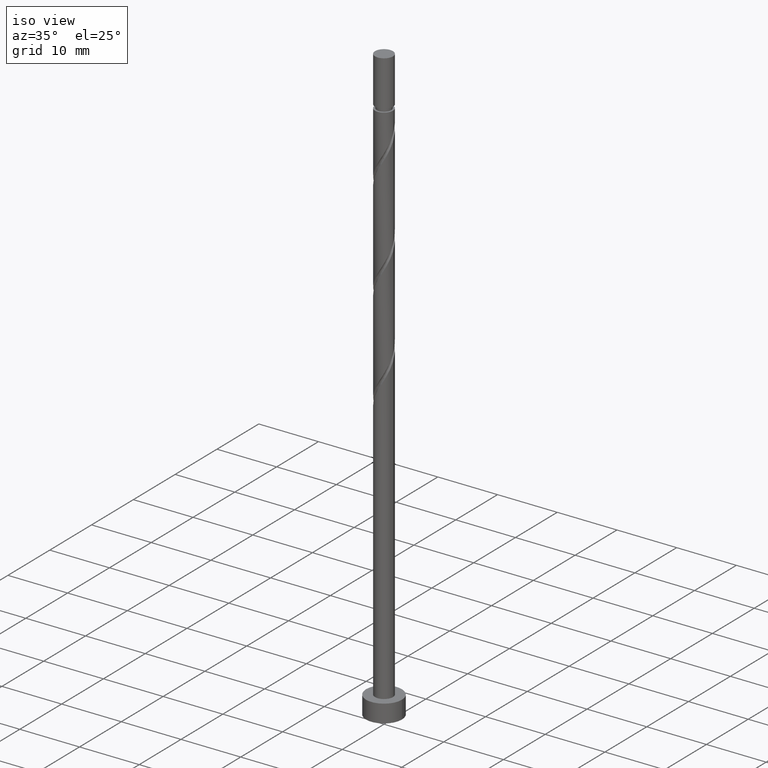
[diagram: clean part render]
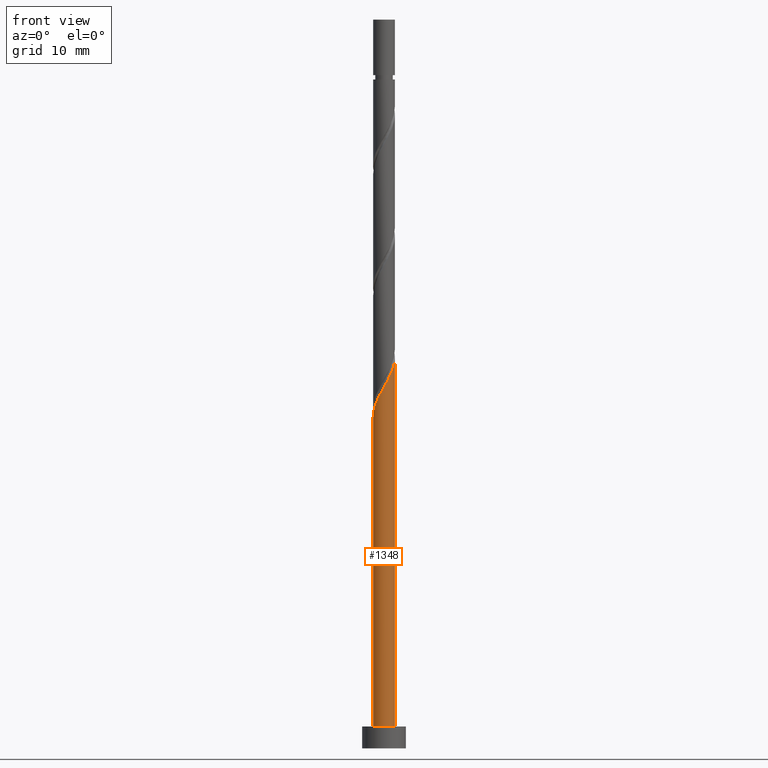
[diagram: tour spotlight — one face highlighted and labeled with its STEP entity id]
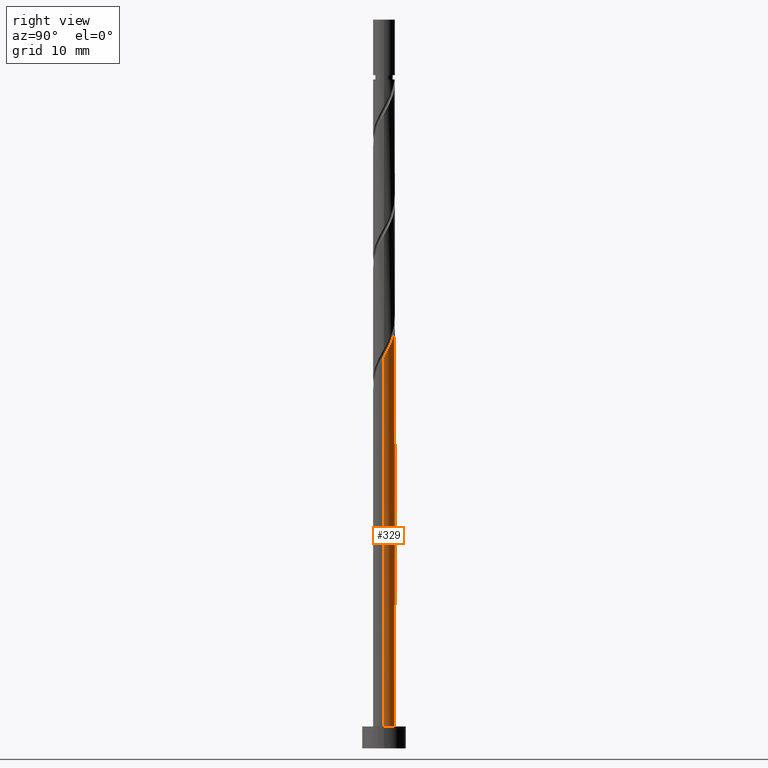
[diagram: tour spotlight — one face highlighted and labeled with its STEP entity id]
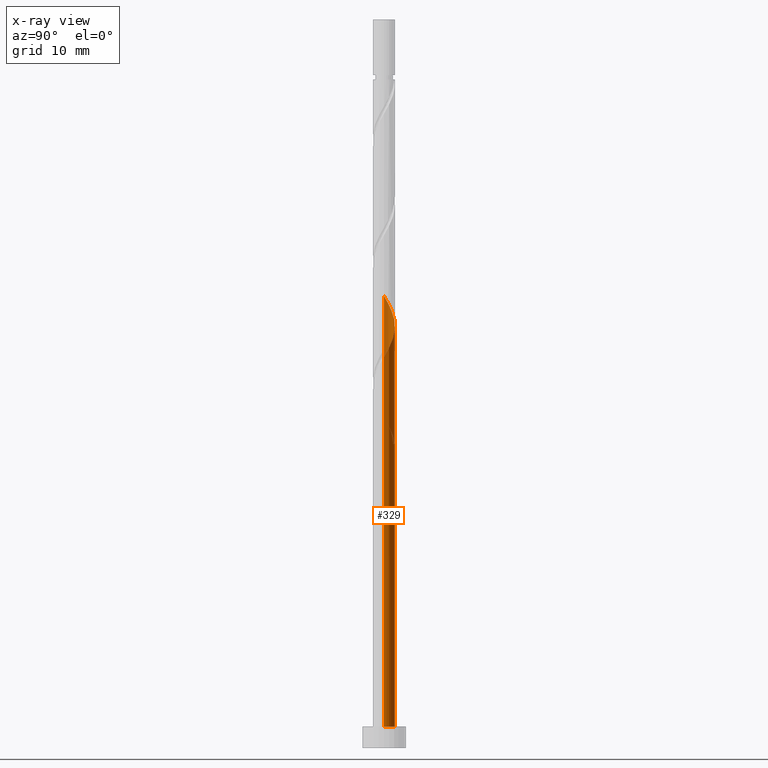
[diagram: x-ray of the same camera — body ghosted, this tour face saturated]
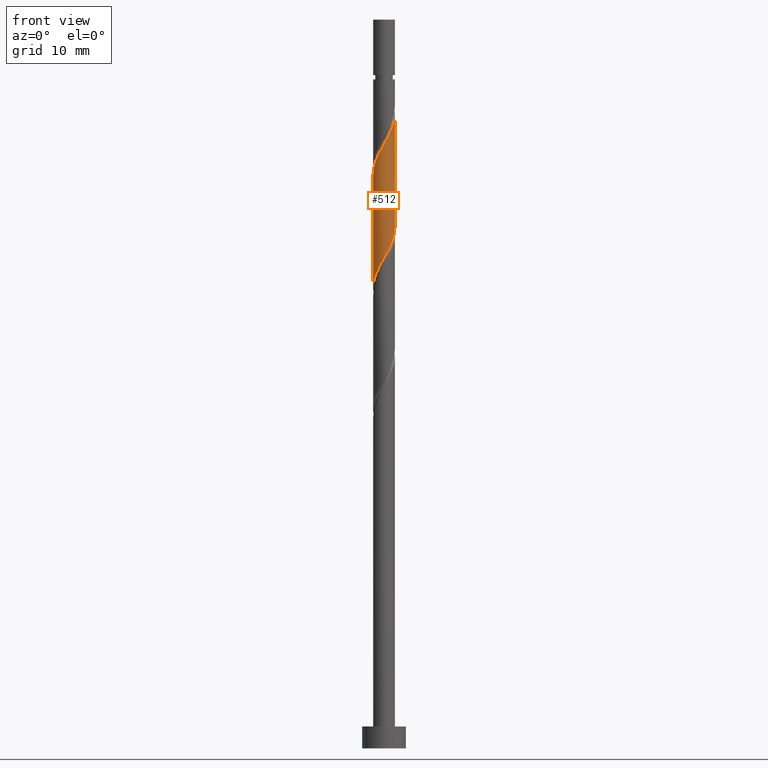
[diagram: tour spotlight — one face highlighted and labeled with its STEP entity id]
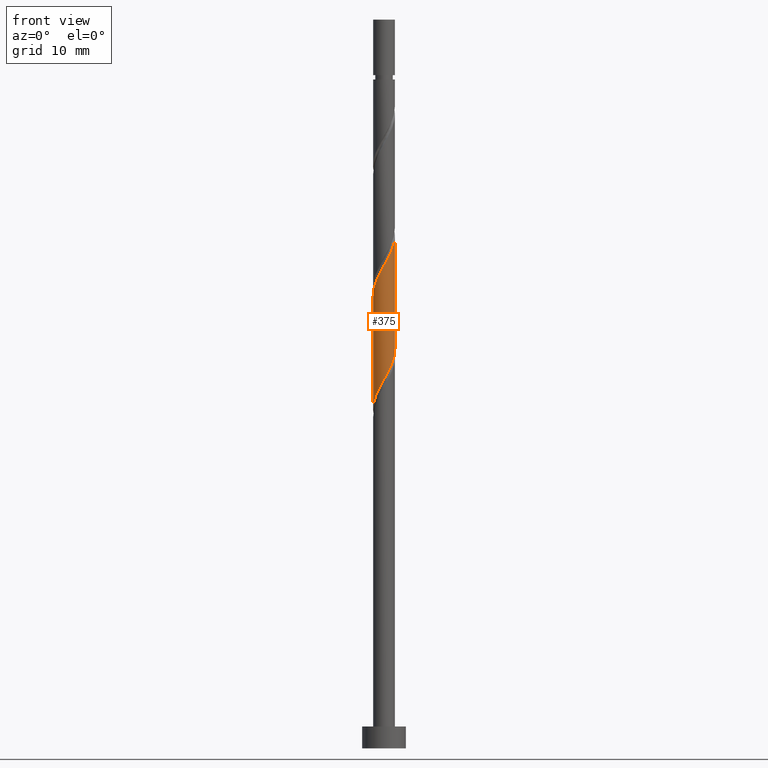
[diagram: tour spotlight — one face highlighted and labeled with its STEP entity id]
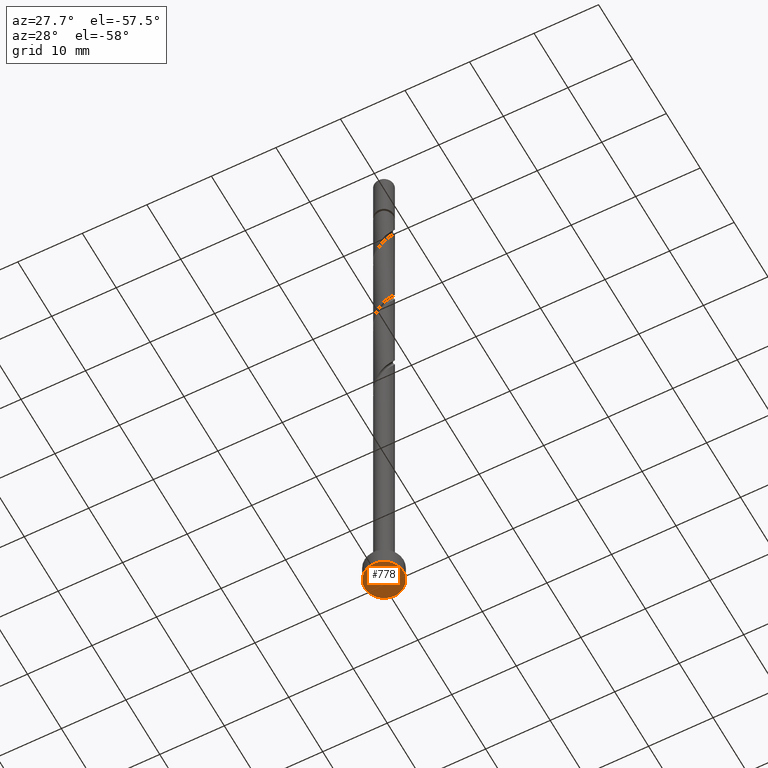
[diagram: tour spotlight — one face highlighted and labeled with its STEP entity id]
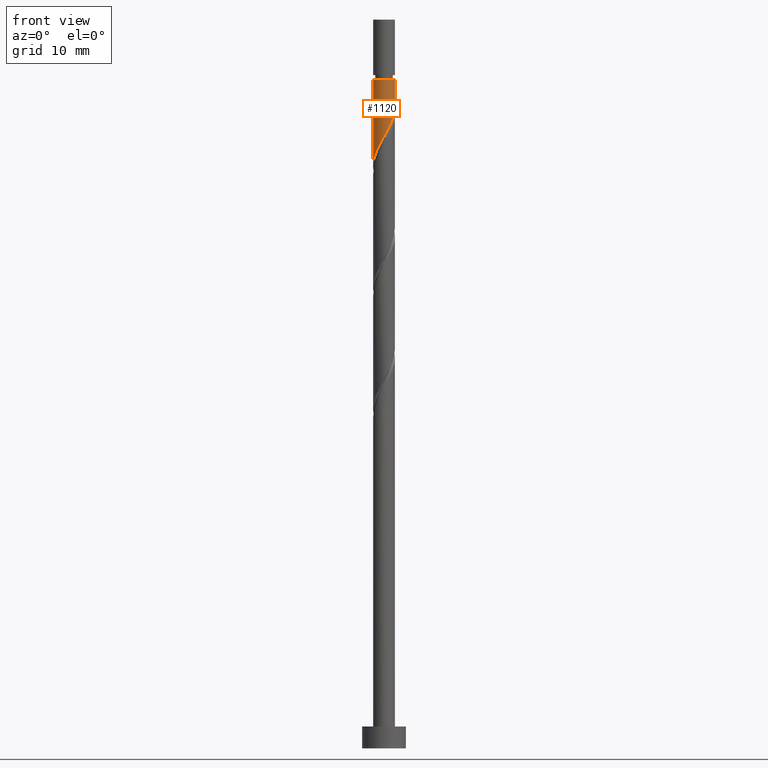
[diagram: tour spotlight — one face highlighted and labeled with its STEP entity id]
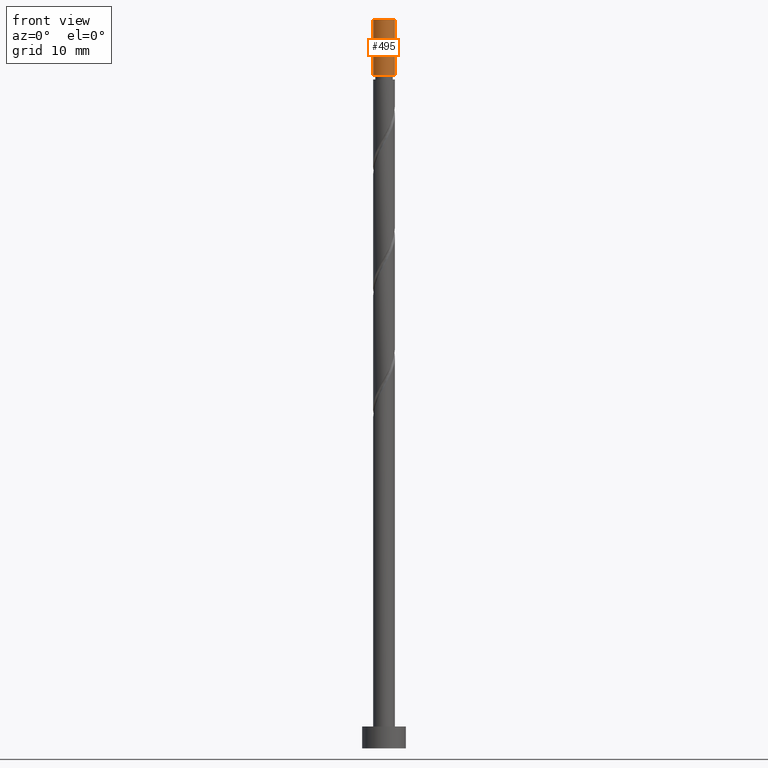
[diagram: tour spotlight — one face highlighted and labeled with its STEP entity id]
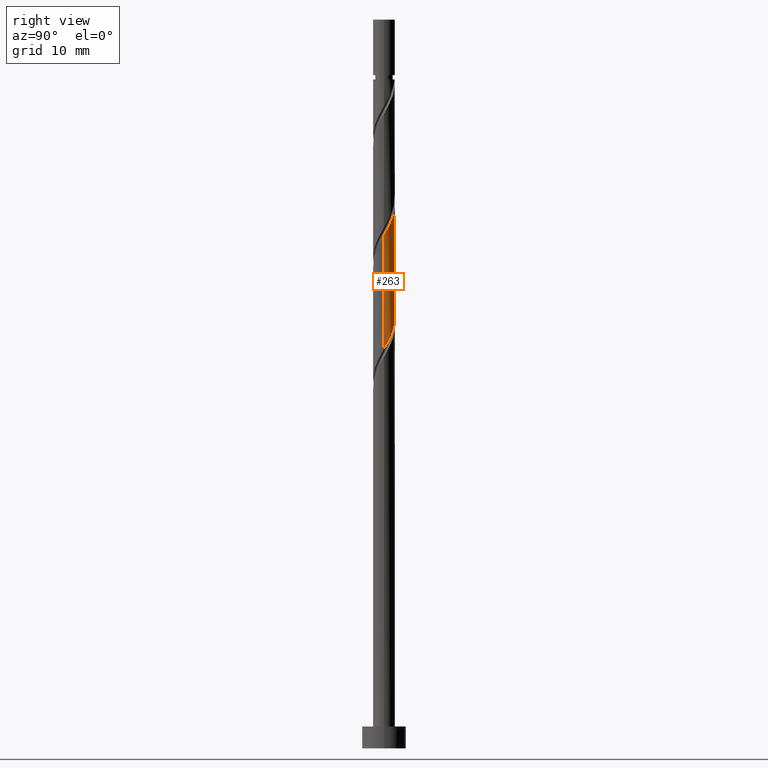
[diagram: tour spotlight — one face highlighted and labeled with its STEP entity id]
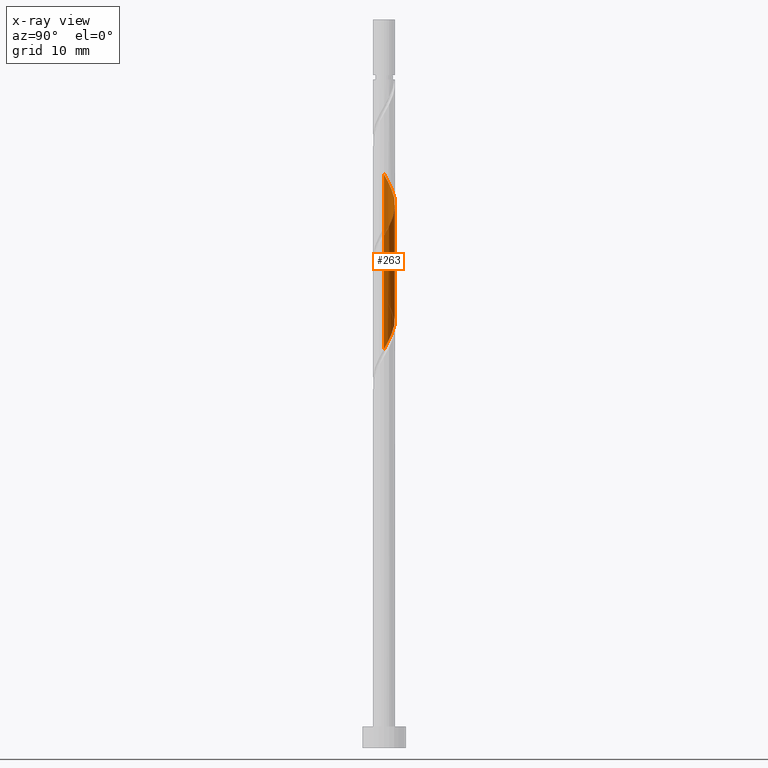
[diagram: x-ray of the same camera — body ghosted, this tour face saturated]
A machine part: a face-by-face anatomy tour. The part has 21 B-rep faces; the first image is the clean iso view, then the 8 largest visible faces are spotlighted one at a time (largest first), each with its STEP entity span.

Face 1 — front view, entity #1348. In plain terms, the highlighted cylindrical surface (edge-blend (fillet) strip) has radius 1.5 mm, axis along (-0, -0, -1).
Definition (entity closure, byte-faithful):
#25 = CARTESIAN_POINT ( 'NONE',  ( -1.298991021230817333, -0.7953474310291670513, 46.86694574919198431 ) ) ;
#79 = ORIENTED_EDGE ( 'NONE', *, *, #467, .F. ) ;
#151 = CARTESIAN_POINT ( 'NONE',  ( 1.500000000000001776, -0.2445815577306873767, 53.31357875591168494 ) ) ;
#178 = CARTESIAN_POINT ( 'NONE',  ( 1.422305459129120209, -0.4764946809057906685, 52.88546426771051046 ) ) ;
#181 = LINE ( 'NONE', #1448, #607 ) ;
#196 = CARTESIAN_POINT ( 'NONE',  ( 1.500000000000000222, 1.836970198721029934E-16, 100.0000000000000000 ) ) ;
#267 =( BOUNDED_CURVE ( )  B_SPLINE_CURVE ( 2, ( #1297, #977, #275, #628, #1197, #25, #1429, #1078, #1289, #733, #1275, #289, #387, #962, #410, #282, #954, #1181, #178, #151, #834 ),
 .UNSPECIFIED., .F., .T. ) 
 B_SPLINE_CURVE_WITH_KNOTS ( ( 3, 2, 2, 2, 2, 2, 2, 2, 2, 2, 3 ),
 ( 0.05452480538552887529, 0.05555555555555558023, 0.06944444444444441977, 0.08333333333333337034, 0.09722222222222220989, 0.1111111111111111605, 0.1250000000000000000, 0.1388888888888888395, 0.1527777777777777901, 0.1666666666666666297, 0.1795248053855290349 ),
 .UNSPECIFIED. ) 
 CURVE ( )  GEOMETRIC_REPRESENTATION_ITEM ( )  RATIONAL_B_SPLINE_CURVE ( ( 0.9071930855141242533, 0.9080659294509720869, 0.9090909090909123913, 0.8952797754656469653, 0.9090909090909123913, 0.8952797754656469653, 0.9090909090909123913, 0.8952797754656469653, 0.9090909090909123913, 0.8952797754656469653, 0.9090909090909123913, 0.8952797754656469653, 0.9090909090909123913, 0.8952797754656469653, 0.9090909090909123913, 0.8952797754656469653, 0.9090909090909123913, 0.8952797754656469653, 0.9090909090909123913, 0.8963047551055870477, 0.9071930855141245864 ) ) 
 REPRESENTATION_ITEM ( '' )  );
#269 = AXIS2_PLACEMENT_3D ( 'NONE', #1300, #529, #928 ) ;
#275 = CARTESIAN_POINT ( 'NONE',  ( -1.499500723504464617, -0.03869858149331571739, 45.47805686030309857 ) ) ;
#282 = CARTESIAN_POINT ( 'NONE',  ( 1.008831740058302007, -1.141145796791064537, 51.49657537882161762 ) ) ;
#289 = CARTESIAN_POINT ( 'NONE',  ( 0.03929556949054156118, -1.522632939188361956, 49.64472352696976287 ) ) ;
#311 = EDGE_CURVE ( 'NONE', #1068, #577, #796, .T. ) ;
#364 = ORIENTED_EDGE ( 'NONE', *, *, #311, .T. ) ;
#387 = CARTESIAN_POINT ( 'NONE',  ( 0.2984962311319859785, -1.470000000000002860, 50.10768648993272478 ) ) ;
#395 = FACE_OUTER_BOUND ( 'NONE', #498, .T. ) ;
#406 = CARTESIAN_POINT ( 'NONE',  ( -1.500000000000000222, 0.000000000000000000, 3.000000000000000000 ) ) ;
#410 = CARTESIAN_POINT ( 'NONE',  ( 0.7832643164158660243, -1.279256428801354151, 51.03361241585864860 ) ) ;
#416 = LINE ( 'NONE', #196, #1482 ) ;
#467 = EDGE_CURVE ( 'NONE', #686, #577, #416, .T. ) ;
#498 = EDGE_LOOP ( 'NONE', ( #79, #1061, #1337, #364 ) ) ;
#526 = DIRECTION ( 'NONE',  ( -1.000000000000000000, 0.000000000000000000, 0.000000000000000000 ) ) ;
#529 = DIRECTION ( 'NONE',  ( 0.000000000000000000, 0.000000000000000000, 1.000000000000000000 ) ) ;
#557 = AXIS2_PLACEMENT_3D ( 'NONE', #850, #1404, #526 ) ;
#577 = VERTEX_POINT ( 'NONE', #634 ) ;
#589 = CARTESIAN_POINT ( 'NONE',  ( 1.500000000000002220, -1.393058630497839714E-15, 53.74349826827730681 ) ) ;
#607 = VECTOR ( 'NONE', #1090, 1000.000000000000000 ) ;
#628 = CARTESIAN_POINT ( 'NONE',  ( -1.492677119472048064, -0.3031010166390167293, 45.94101982326605338 ) ) ;
#634 = CARTESIAN_POINT ( 'NONE',  ( 1.500000000000000222, 1.836970198721029934E-16, 3.000000000000000000 ) ) ;
#686 = VERTEX_POINT ( 'NONE', #589 ) ;
#733 = CARTESIAN_POINT ( 'NONE',  ( -0.4838453794137455022, -1.444246813430081433, 48.71879760104381774 ) ) ;
#796 = CIRCLE ( 'NONE', #269, 1.500000000000000222 ) ;
#834 = CARTESIAN_POINT ( 'NONE',  ( 1.500000000000002220, -1.393058630497839714E-15, 53.74349826827730681 ) ) ;
#842 = CYLINDRICAL_SURFACE ( 'NONE', #557, 1.500000000000000222 ) ;
#850 = CARTESIAN_POINT ( 'NONE',  ( 0.000000000000000000, 0.000000000000000000, 100.0000000000000000 ) ) ;
#917 = CARTESIAN_POINT ( 'NONE',  ( -1.500000000000002220, 1.351976472493881965E-15, 45.41016493494395689 ) ) ;
#928 = DIRECTION ( 'NONE',  ( 1.000000000000000000, 0.000000000000000000, 0.000000000000000000 ) ) ;
#954 = CARTESIAN_POINT ( 'NONE',  ( 1.173559165389830738, -0.9342156524751294988, 51.95953834178457242 ) ) ;
#962 = CARTESIAN_POINT ( 'NONE',  ( 0.5576968927734297088, -1.417367060811643764, 50.57064945289567248 ) ) ;
#977 = CARTESIAN_POINT ( 'NONE',  ( -1.500000000000002665, -0.01935251149802717785, 45.44418230887632859 ) ) ;
#1054 = EDGE_CURVE ( 'NONE', #1257, #1068, #181, .T. ) ;
#1061 = ORIENTED_EDGE ( 'NONE', *, *, #1364, .F. ) ;
#1068 = VERTEX_POINT ( 'NONE', #406 ) ;
#1078 = CARTESIAN_POINT ( 'NONE',  ( -0.9486274347634513493, -1.191663207159258553, 47.79287167511790813 ) ) ;
#1090 = DIRECTION ( 'NONE',  ( -0.000000000000000000, -0.000000000000000000, -1.000000000000000000 ) ) ;
#1092 = DIRECTION ( 'NONE',  ( -0.000000000000000000, -0.000000000000000000, -1.000000000000000000 ) ) ;
#1181 = CARTESIAN_POINT ( 'NONE',  ( 1.338286590721358360, -0.7272855081591950155, 52.42250130474753433 ) ) ;
#1197 = CARTESIAN_POINT ( 'NONE',  ( -1.395834070351432477, -0.5492242238340919736, 46.40398278622902239 ) ) ;
#1257 = VERTEX_POINT ( 'NONE', #917 ) ;
#1275 = CARTESIAN_POINT ( 'NONE',  ( -0.2222749049616019601, -1.483439876309221361, 49.18176056400680807 ) ) ;
#1289 = CARTESIAN_POINT ( 'NONE',  ( -0.7162364070885987033, -1.317955010294669327, 48.25583463808087004 ) ) ;
#1297 = CARTESIAN_POINT ( 'NONE',  ( -1.500000000000002220, 1.351976472493881965E-15, 45.41016493494395689 ) ) ;
#1300 = CARTESIAN_POINT ( 'NONE',  ( 0.000000000000000000, 0.000000000000000000, 3.000000000000000000 ) ) ;
#1337 = ORIENTED_EDGE ( 'NONE', *, *, #1054, .T. ) ;
#1348 = ADVANCED_FACE ( 'NONE', ( #395 ), #842, .T. ) ;
#1364 = EDGE_CURVE ( 'NONE', #1257, #686, #267, .T. ) ;
#1404 = DIRECTION ( 'NONE',  ( -0.000000000000000000, -0.000000000000000000, -1.000000000000000000 ) ) ;
#1429 = CARTESIAN_POINT ( 'NONE',  ( -1.123809227997134341, -0.9935053190942126911, 47.32990871215496043 ) ) ;
#1448 = CARTESIAN_POINT ( 'NONE',  ( -1.500000000000000222, 0.000000000000000000, 100.0000000000000000 ) ) ;
#1482 = VECTOR ( 'NONE', #1092, 1000.000000000000000 ) ;

Face 2 — right view, entity #329. An x-ray twin of the same camera follows (body ghosted, this face saturated) — the face is partly hidden behind the body. In plain terms, the highlighted cylindrical surface (edge-blend (fillet) strip) has radius 1.5 mm, axis along (-0, -0, -1).
Definition (entity closure, byte-faithful):
#4 = CARTESIAN_POINT ( 'NONE',  ( -1.499999999999999778, 1.990243818209928386E-14, 46.47187471158811434 ) ) ;
#6 =( BOUNDED_CURVE ( )  B_SPLINE_CURVE ( 2, ( #556, #1220, #661, #1206, #217, #316, #891, #450, #323, #883, #204, #100, #654, #766, #673, #1007, #187, #1326, #1113, #1461, #780 ),
 .UNSPECIFIED., .F., .T. ) 
 B_SPLINE_CURVE_WITH_KNOTS ( ( 3, 2, 2, 2, 2, 2, 2, 2, 2, 2, 3 ),
 ( 0.1795248053855290349, 0.1805555555555555802, 0.1944444444444444198, 0.2083333333333333703, 0.2222222222222222099, 0.2361111111111111605, 0.2500000000000000000, 0.2638888888888888395, 0.2777777777777777901, 0.2916666666666666297, 0.3045248053855288961 ),
 .UNSPECIFIED. ) 
 CURVE ( )  GEOMETRIC_REPRESENTATION_ITEM ( )  RATIONAL_B_SPLINE_CURVE ( ( 0.9071930855141245864, 0.9080659294509723090, 0.9090909090909123913, 0.8952797754656469653, 0.9090909090909123913, 0.8952797754656469653, 0.9090909090909123913, 0.8952797754656469653, 0.9090909090909123913, 0.8952797754656469653, 0.9090909090909123913, 0.8952797754656469653, 0.9090909090909123913, 0.8952797754656469653, 0.9090909090909123913, 0.8952797754656469653, 0.9090909090909123913, 0.8952797754656469653, 0.9090909090909123913, 0.8963047551055871587, 0.9071930855141244754 ) ) 
 REPRESENTATION_ITEM ( '' )  );
#36 = CARTESIAN_POINT ( 'NONE',  ( -1.500000000000002220, 1.351976472493881965E-15, 45.41016493494395689 ) ) ;
#42 = DIRECTION ( 'NONE',  ( -0.000000000000000000, -0.000000000000000000, -1.000000000000000000 ) ) ;
#70 = AXIS2_PLACEMENT_3D ( 'NONE', #979, #42, #1037 ) ;
#97 = ORIENTED_EDGE ( 'NONE', *, *, #794, .F. ) ;
#100 = CARTESIAN_POINT ( 'NONE',  ( -0.03929556949054199139, 1.522632939188361512, 57.97805686030308436 ) ) ;
#109 = CARTESIAN_POINT ( 'NONE',  ( -1.499500723504461952, 0.03869858149331604352, 46.40398278622902239 ) ) ;
#120 = ORIENTED_EDGE ( 'NONE', *, *, #1103, .F. ) ;
#132 = CARTESIAN_POINT ( 'NONE',  ( -1.500000000000002220, 1.351976472493881965E-15, 62.07683160161062830 ) ) ;
#181 = LINE ( 'NONE', #1448, #607 ) ;
#187 = CARTESIAN_POINT ( 'NONE',  ( -1.173559165389830738, 0.9342156524751294988, 60.29287167511790813 ) ) ;
#196 = CARTESIAN_POINT ( 'NONE',  ( 1.500000000000000222, 1.836970198721029934E-16, 100.0000000000000000 ) ) ;
#204 = CARTESIAN_POINT ( 'NONE',  ( 0.2222749049616028205, 1.483439876309221361, 57.51509389734013666 ) ) ;
#205 = CARTESIAN_POINT ( 'NONE',  ( 0.2984962311319862005, 1.470000000000000417, 41.77435315659938908 ) ) ;
#217 = CARTESIAN_POINT ( 'NONE',  ( 1.395834070351432477, 0.5492242238340917515, 54.73731611956235810 ) ) ;
#227 = CARTESIAN_POINT ( 'NONE',  ( -1.499999999999999556, 0.01935251149804149973, 46.43785733765577817 ) ) ;
#294 = DIRECTION ( 'NONE',  ( -0.000000000000000000, -0.000000000000000000, -1.000000000000000000 ) ) ;
#309 = CARTESIAN_POINT ( 'NONE',  ( 0.000000000000000000, 0.000000000000000000, 3.000000000000000000 ) ) ;
#316 = CARTESIAN_POINT ( 'NONE',  ( 1.298991021230817333, 0.7953474310291662741, 55.20027908252532711 ) ) ;
#323 = CARTESIAN_POINT ( 'NONE',  ( 0.7162364070885989253, 1.317955010294669327, 56.58916797141421284 ) ) ;
#329 = ADVANCED_FACE ( 'NONE', ( #1309 ), #1081, .T. ) ;
#330 = DIRECTION ( 'NONE',  ( -1.000000000000000000, 0.000000000000000000, 0.000000000000000000 ) ) ;
#353 = CARTESIAN_POINT ( 'NONE',  ( 0.03929556949054225506, 1.522632939188358847, 42.23731611956234389 ) ) ;
#359 = DIRECTION ( 'NONE',  ( 1.000000000000000000, 0.000000000000000000, 0.000000000000000000 ) ) ;
#368 = AXIS2_PLACEMENT_3D ( 'NONE', #309, #1020, #359 ) ;
#400 = EDGE_CURVE ( 'NONE', #1235, #1216, #839, .T. ) ;
#406 = CARTESIAN_POINT ( 'NONE',  ( -1.500000000000000222, 0.000000000000000000, 3.000000000000000000 ) ) ;
#416 = LINE ( 'NONE', #196, #1482 ) ;
#421 = EDGE_CURVE ( 'NONE', #686, #983, #6, .T. ) ;
#423 = CARTESIAN_POINT ( 'NONE',  ( -1.500000000000000222, 0.000000000000000000, 100.0000000000000000 ) ) ;
#450 = CARTESIAN_POINT ( 'NONE',  ( 0.9486274347634516824, 1.191663207159258553, 56.12620500845122962 ) ) ;
#457 = CARTESIAN_POINT ( 'NONE',  ( -0.7162364070885970380, 1.317955010294667995, 43.62620500845125093 ) ) ;
#467 = EDGE_CURVE ( 'NONE', #686, #577, #416, .T. ) ;
#475 = CARTESIAN_POINT ( 'NONE',  ( -0.2984962311319856454, 1.470000000000002638, 41.77435315659938908 ) ) ;
#493 = ORIENTED_EDGE ( 'NONE', *, *, #1054, .F. ) ;
#504 = ORIENTED_EDGE ( 'NONE', *, *, #421, .F. ) ;
#556 = CARTESIAN_POINT ( 'NONE',  ( 1.500000000000002220, -1.393058630497839714E-15, 53.74349826827730681 ) ) ;
#574 = CARTESIAN_POINT ( 'NONE',  ( -1.298991021230814669, 0.7953474310291660521, 45.01509389734012245 ) ) ;
#577 = VERTEX_POINT ( 'NONE', #634 ) ;
#589 = CARTESIAN_POINT ( 'NONE',  ( 1.500000000000002220, -1.393058630497839714E-15, 53.74349826827730681 ) ) ;
#603 = EDGE_CURVE ( 'NONE', #1273, #1216, #781, .T. ) ;
#607 = VECTOR ( 'NONE', #1090, 1000.000000000000000 ) ;
#609 = CARTESIAN_POINT ( 'NONE',  ( -1.008831740058302451, 1.141145796791064537, 43.16324204548827481 ) ) ;
#616 = CARTESIAN_POINT ( 'NONE',  ( -1.500000000000001110, 0.2445815577306894306, 44.98024542257834923 ) ) ;
#624 = LINE ( 'NONE', #423, #1312 ) ;
#634 = CARTESIAN_POINT ( 'NONE',  ( 1.500000000000000222, 1.836970198721029934E-16, 3.000000000000000000 ) ) ;
#654 = CARTESIAN_POINT ( 'NONE',  ( -0.2984962311319857009, 1.470000000000002860, 58.44101982326606759 ) ) ;
#661 = CARTESIAN_POINT ( 'NONE',  ( 1.499500723504464617, 0.03869858149331581454, 53.81139019363644849 ) ) ;
#673 = CARTESIAN_POINT ( 'NONE',  ( -0.7832643164158660243, 1.279256428801354151, 59.36694574919199141 ) ) ;
#686 = VERTEX_POINT ( 'NONE', #589 ) ;
#697 = CARTESIAN_POINT ( 'NONE',  ( -0.9486274347634497950, 1.191663207159256554, 44.08916797141419153 ) ) ;
#766 = CARTESIAN_POINT ( 'NONE',  ( -0.5576968927734299308, 1.417367060811643542, 58.90398278622901529 ) ) ;
#773 = DIRECTION ( 'NONE',  ( 0.000000000000000000, -0.000000000000000000, -1.000000000000000000 ) ) ;
#780 = CARTESIAN_POINT ( 'NONE',  ( -1.500000000000002442, 1.351976472493881767E-15, 62.07683160161063540 ) ) ;
#781 =( BOUNDED_CURVE ( )  B_SPLINE_CURVE ( 2, ( #803, #227, #109, #1455, #1371, #574, #1476, #697, #457, #1128, #912, #353, #898 ),
 .UNSPECIFIED., .F., .T. ) 
 B_SPLINE_CURVE_WITH_KNOTS ( ( 3, 2, 2, 2, 2, 2, 3 ),
 ( 0.9295248053855296178, 0.9305555555555555802, 0.9444444444444444198, 0.9583333333333333703, 0.9722222222222222099, 0.9861111111111111605, 1.000000000000000000 ),
 .UNSPECIFIED. ) 
 CURVE ( )  GEOMETRIC_REPRESENTATION_ITEM ( )  RATIONAL_B_SPLINE_CURVE ( ( 0.9071930855141191463, 0.9080659294509663138, 0.9090909090909058410, 0.8952797754656407481, 0.9090909090909058410, 0.8952797754656407481, 0.9090909090909058410, 0.8952797754656407481, 0.9090909090909058410, 0.8952797754656407481, 0.9090909090909058410, 0.8952797754656407481, 0.9090909090909058410 ) ) 
 REPRESENTATION_ITEM ( '' )  );
#794 = EDGE_CURVE ( 'NONE', #1235, #1257, #1385, .T. ) ;
#803 = CARTESIAN_POINT ( 'NONE',  ( -1.499999999999999778, 1.990243818209928386E-14, 46.47187471158810723 ) ) ;
#836 = CARTESIAN_POINT ( 'NONE',  ( -0.7832643164158660243, 1.279256428801354151, 42.70027908252531290 ) ) ;
#839 = CIRCLE ( 'NONE', #1286, 1.500000000000000222 ) ;
#883 = CARTESIAN_POINT ( 'NONE',  ( 0.4838453794137463904, 1.444246813430080989, 57.05213093437718186 ) ) ;
#891 = CARTESIAN_POINT ( 'NONE',  ( 1.123809227997134119, 0.9935053190942128021, 55.66324204548827481 ) ) ;
#898 = CARTESIAN_POINT ( 'NONE',  ( 0.2984962311319862560, 1.470000000000000417, 41.77435315659938908 ) ) ;
#912 = CARTESIAN_POINT ( 'NONE',  ( -0.2222749049616010442, 1.483439876309219363, 42.70027908252530580 ) ) ;
#917 = CARTESIAN_POINT ( 'NONE',  ( -1.500000000000002220, 1.351976472493881965E-15, 45.41016493494395689 ) ) ;
#950 = CARTESIAN_POINT ( 'NONE',  ( -1.173559165389830738, 0.9342156524751294988, 43.62620500845125804 ) ) ;
#957 = CARTESIAN_POINT ( 'NONE',  ( -1.422305459129120209, 0.4764946809057903354, 44.55213093437716054 ) ) ;
#967 = ORIENTED_EDGE ( 'NONE', *, *, #603, .F. ) ;
#979 = CARTESIAN_POINT ( 'NONE',  ( 0.000000000000000000, 0.000000000000000000, 100.0000000000000000 ) ) ;
#983 = VERTEX_POINT ( 'NONE', #132 ) ;
#1007 = CARTESIAN_POINT ( 'NONE',  ( -1.008831740058302451, 1.141145796791064537, 59.82990871215493200 ) ) ;
#1020 = DIRECTION ( 'NONE',  ( 0.000000000000000000, 0.000000000000000000, 1.000000000000000000 ) ) ;
#1037 = DIRECTION ( 'NONE',  ( -1.000000000000000000, 0.000000000000000000, 0.000000000000000000 ) ) ;
#1039 = ORIENTED_EDGE ( 'NONE', *, *, #467, .T. ) ;
#1054 = EDGE_CURVE ( 'NONE', #1257, #1068, #181, .T. ) ;
#1068 = VERTEX_POINT ( 'NONE', #406 ) ;
#1081 = CYLINDRICAL_SURFACE ( 'NONE', #70, 1.500000000000000222 ) ;
#1090 = DIRECTION ( 'NONE',  ( -0.000000000000000000, -0.000000000000000000, -1.000000000000000000 ) ) ;
#1092 = DIRECTION ( 'NONE',  ( -0.000000000000000000, -0.000000000000000000, -1.000000000000000000 ) ) ;
#1103 = EDGE_CURVE ( 'NONE', #983, #1273, #624, .T. ) ;
#1113 = CARTESIAN_POINT ( 'NONE',  ( -1.422305459129120209, 0.4764946809057903354, 61.21879760104383905 ) ) ;
#1128 = CARTESIAN_POINT ( 'NONE',  ( -0.4838453794137442809, 1.444246813430079213, 43.16324204548826060 ) ) ;
#1143 = EDGE_LOOP ( 'NONE', ( #504, #1039, #1186, #493, #97, #1304, #967, #120 ) ) ;
#1184 = CARTESIAN_POINT ( 'NONE',  ( -0.5576968927734299308, 1.417367060811643542, 42.23731611956234389 ) ) ;
#1186 = ORIENTED_EDGE ( 'NONE', *, *, #1209, .T. ) ;
#1206 = CARTESIAN_POINT ( 'NONE',  ( 1.492677119472048064, 0.3031010166390166183, 54.27435315659939619 ) ) ;
#1209 = EDGE_CURVE ( 'NONE', #577, #1068, #1316, .T. ) ;
#1216 = VERTEX_POINT ( 'NONE', #205 ) ;
#1220 = CARTESIAN_POINT ( 'NONE',  ( 1.500000000000002442, 0.01935251149803021709, 53.77751564220965719 ) ) ;
#1235 = VERTEX_POINT ( 'NONE', #1259 ) ;
#1257 = VERTEX_POINT ( 'NONE', #917 ) ;
#1259 = CARTESIAN_POINT ( 'NONE',  ( -0.2984962311319856454, 1.470000000000002638, 41.77435315659938908 ) ) ;
#1273 = VERTEX_POINT ( 'NONE', #4 ) ;
#1286 = AXIS2_PLACEMENT_3D ( 'NONE', #1334, #773, #330 ) ;
#1304 = ORIENTED_EDGE ( 'NONE', *, *, #400, .T. ) ;
#1309 = FACE_OUTER_BOUND ( 'NONE', #1143, .T. ) ;
#1312 = VECTOR ( 'NONE', #294, 1000.000000000000000 ) ;
#1316 = CIRCLE ( 'NONE', #368, 1.500000000000000222 ) ;
#1326 = CARTESIAN_POINT ( 'NONE',  ( -1.338286590721358582, 0.7272855081591945714, 60.75583463808088425 ) ) ;
#1334 = CARTESIAN_POINT ( 'NONE',  ( 0.000000000000000000, 0.000000000000000000, 41.77435315659938908 ) ) ;
#1371 = CARTESIAN_POINT ( 'NONE',  ( -1.395834070351429812, 0.5492242238340913074, 45.47805686030309147 ) ) ;
#1385 =( BOUNDED_CURVE ( )  B_SPLINE_CURVE ( 2, ( #475, #1184, #836, #609, #950, #1400, #957, #616, #36 ),
 .UNSPECIFIED., .F., .T. ) 
 B_SPLINE_CURVE_WITH_KNOTS ( ( 3, 2, 2, 2, 3 ),
 ( 0.000000000000000000, 0.01388888888888883955, 0.02777777777777779011, 0.04166666666666662966, 0.05452480538552887529 ),
 .UNSPECIFIED. ) 
 CURVE ( )  GEOMETRIC_REPRESENTATION_ITEM ( )  RATIONAL_B_SPLINE_CURVE ( ( 0.9090909090909123913, 0.8952797754656469653, 0.9090909090909123913, 0.8952797754656469653, 0.9090909090909123913, 0.8952797754656469653, 0.9090909090909123913, 0.8963047551055872697, 0.9071930855141242533 ) ) 
 REPRESENTATION_ITEM ( '' )  );
#1400 = CARTESIAN_POINT ( 'NONE',  ( -1.338286590721358582, 0.7272855081591945714, 44.08916797141421284 ) ) ;
#1448 = CARTESIAN_POINT ( 'NONE',  ( -1.500000000000000222, 0.000000000000000000, 100.0000000000000000 ) ) ;
#1455 = CARTESIAN_POINT ( 'NONE',  ( -1.492677119472045399, 0.3031010166390167293, 45.94101982326605338 ) ) ;
#1461 = CARTESIAN_POINT ( 'NONE',  ( -1.500000000000001332, 0.2445815577306890698, 61.64691208924500643 ) ) ;
#1476 = CARTESIAN_POINT ( 'NONE',  ( -1.123809227997132343, 0.9935053190942115808, 44.55213093437717475 ) ) ;
#1482 = VECTOR ( 'NONE', #1092, 1000.000000000000000 ) ;

Face 3 — front view, entity #512. In plain terms, the highlighted cylindrical surface (edge-blend (fillet) strip) has radius 1.5 mm, axis along (-0, -0, -1).
Definition (entity closure, byte-faithful):
#62 = EDGE_CURVE ( 'NONE', #626, #998, #235, .T. ) ;
#77 = CARTESIAN_POINT ( 'NONE',  ( 0.03929556949054156118, -1.522632939188361956, 82.97805686030308436 ) ) ;
#78 = CARTESIAN_POINT ( 'NONE',  ( 1.500000000000000222, 3.697394220356223103E-16, 71.47187471158817118 ) ) ;
#86 = DIRECTION ( 'NONE',  ( -1.000000000000000000, 0.000000000000000000, 0.000000000000000000 ) ) ;
#91 = CARTESIAN_POINT ( 'NONE',  ( 0.2222749049616010442, -1.483439876309219363, 67.70027908252532711 ) ) ;
#154 = CARTESIAN_POINT ( 'NONE',  ( 1.500000000000000222, 1.836970198721029934E-16, 100.0000000000000000 ) ) ;
#189 = DIRECTION ( 'NONE',  ( -0.000000000000000000, -0.000000000000000000, -1.000000000000000000 ) ) ;
#219 = CARTESIAN_POINT ( 'NONE',  ( 1.395834070351429812, -0.5492242238340913074, 70.47805686030309857 ) ) ;
#235 = LINE ( 'NONE', #1122, #1060 ) ;
#285 = CARTESIAN_POINT ( 'NONE',  ( -1.123809227997134341, -0.9935053190942126911, 80.66324204548827481 ) ) ;
#317 = CARTESIAN_POINT ( 'NONE',  ( -1.499999999999999778, 1.990243818209928386E-14, 63.13854137825477864 ) ) ;
#337 = CARTESIAN_POINT ( 'NONE',  ( -1.008831740058300674, -1.141145796791062761, 65.38546426771050335 ) ) ;
#357 = ORIENTED_EDGE ( 'NONE', *, *, #62, .T. ) ;
#391 = LINE ( 'NONE', #154, #1075 ) ;
#413 = CARTESIAN_POINT ( 'NONE',  ( 1.422305459129120209, -0.4764946809057906685, 86.21879760104387458 ) ) ;
#417 = ORIENTED_EDGE ( 'NONE', *, *, #596, .F. ) ;
#438 = CARTESIAN_POINT ( 'NONE',  ( 0.4838453794137440589, -1.444246813430079213, 68.16324204548827481 ) ) ;
#451 = CARTESIAN_POINT ( 'NONE',  ( 0.7162364070885970380, -1.317955010294667995, 68.62620500845123672 ) ) ;
#468 = CARTESIAN_POINT ( 'NONE',  ( -1.500000000000003553, -0.2445815577306750255, 63.56846089062041472 ) ) ;
#511 = CARTESIAN_POINT ( 'NONE',  ( 1.500000000000000222, 3.697394220356223103E-16, 71.47187471158817118 ) ) ;
#512 = ADVANCED_FACE ( 'NONE', ( #861 ), #663, .T. ) ;
#521 = CARTESIAN_POINT ( 'NONE',  ( 1.173559165389830738, -0.9342156524751294988, 85.29287167511789391 ) ) ;
#527 =( BOUNDED_CURVE ( )  B_SPLINE_CURVE ( 2, ( #996, #965, #1221, #1073, #980, #853, #285, #877, #1207, #989, #1441, #77, #655, #545, #1192, #972, #521, #1432, #413, #1310, #869 ),
 .UNSPECIFIED., .F., .T. ) 
 B_SPLINE_CURVE_WITH_KNOTS ( ( 3, 2, 2, 2, 2, 2, 2, 2, 2, 2, 3 ),
 ( 0.5545248053855292847, 0.5555555555555555802, 0.5694444444444444198, 0.5833333333333332593, 0.5972222222222222099, 0.6111111111111111605, 0.6250000000000000000, 0.6388888888888888395, 0.6527777777777777901, 0.6666666666666667407, 0.6795248053855289516 ),
 .UNSPECIFIED. ) 
 CURVE ( )  GEOMETRIC_REPRESENTATION_ITEM ( )  RATIONAL_B_SPLINE_CURVE ( ( 0.9071930855141250305, 0.9080659294509725310, 0.9090909090909123913, 0.8952797754656469653, 0.9090909090909123913, 0.8952797754656469653, 0.9090909090909123913, 0.8952797754656469653, 0.9090909090909123913, 0.8952797754656469653, 0.9090909090909123913, 0.8952797754656469653, 0.9090909090909123913, 0.8952797754656469653, 0.9090909090909123913, 0.8952797754656469653, 0.9090909090909123913, 0.8952797754656469653, 0.9090909090909123913, 0.8963047551055871587, 0.9071930855141244754 ) ) 
 REPRESENTATION_ITEM ( '' )  );
#540 = CARTESIAN_POINT ( 'NONE',  ( 0.000000000000000000, 0.000000000000000000, 100.0000000000000000 ) ) ;
#545 = CARTESIAN_POINT ( 'NONE',  ( 0.5576968927734297088, -1.417367060811643764, 83.90398278622899397 ) ) ;
#567 = CARTESIAN_POINT ( 'NONE',  ( 1.298991021230814225, -0.7953474310291669402, 70.01509389734015087 ) ) ;
#596 = EDGE_CURVE ( 'NONE', #1109, #998, #629, .T. ) ;
#626 = VERTEX_POINT ( 'NONE', #1254 ) ;
#629 =( BOUNDED_CURVE ( )  B_SPLINE_CURVE ( 2, ( #78, #1468, #892, #1022, #219, #567, #1028, #1486, #451, #438, #91, #1351, #904, #1356, #1134, #337, #682, #1016, #1148, #468, #795 ),
 .UNSPECIFIED., .F., .T. ) 
 B_SPLINE_CURVE_WITH_KNOTS ( ( 3, 2, 2, 2, 2, 2, 2, 2, 2, 2, 3 ),
 ( 0.5545248053855290626, 0.5555555555555555802, 0.5694444444444444198, 0.5833333333333333703, 0.5972222222222222099, 0.6111111111111111605, 0.6250000000000000000, 0.6388888888888888395, 0.6527777777777777901, 0.6666666666666666297, 0.6795248053855296178 ),
 .UNSPECIFIED. ) 
 CURVE ( )  GEOMETRIC_REPRESENTATION_ITEM ( )  RATIONAL_B_SPLINE_CURVE ( ( 0.9071930855141181471, 0.9080659294509657586, 0.9090909090909058410, 0.8952797754656407481, 0.9090909090909058410, 0.8952797754656407481, 0.9090909090909058410, 0.8952797754656407481, 0.9090909090909058410, 0.8952797754656407481, 0.9090909090909058410, 0.8952797754656407481, 0.9090909090909058410, 0.8952797754656407481, 0.9090909090909058410, 0.8952797754656407481, 0.9090909090909058410, 0.8952797754656407481, 0.9090909090909058410, 0.8963047551055801643, 0.9071930855141191463 ) ) 
 REPRESENTATION_ITEM ( '' )  );
#655 = CARTESIAN_POINT ( 'NONE',  ( 0.2984962311319859785, -1.470000000000002860, 83.44101982326604627 ) ) ;
#663 = CYLINDRICAL_SURFACE ( 'NONE', #1218, 1.500000000000000222 ) ;
#682 = CARTESIAN_POINT ( 'NONE',  ( -1.173559165389829184, -0.9342156524751279445, 64.92250130474754144 ) ) ;
#736 = DIRECTION ( 'NONE',  ( -0.000000000000000000, -0.000000000000000000, -1.000000000000000000 ) ) ;
#795 = CARTESIAN_POINT ( 'NONE',  ( -1.499999999999999778, 1.990243818209928386E-14, 63.13854137825477864 ) ) ;
#840 = ORIENTED_EDGE ( 'NONE', *, *, #1146, .F. ) ;
#853 = CARTESIAN_POINT ( 'NONE',  ( -1.298991021230817333, -0.7953474310291670513, 80.20027908252529869 ) ) ;
#861 = FACE_OUTER_BOUND ( 'NONE', #1402, .T. ) ;
#869 = CARTESIAN_POINT ( 'NONE',  ( 1.500000000000002442, 5.340680540514506463E-16, 87.07683160161063540 ) ) ;
#877 = CARTESIAN_POINT ( 'NONE',  ( -0.9486274347634513493, -1.191663207159258553, 81.12620500845125093 ) ) ;
#892 = CARTESIAN_POINT ( 'NONE',  ( 1.499500723504462174, -0.03869858149331658476, 71.40398278622905082 ) ) ;
#902 = EDGE_CURVE ( 'NONE', #1465, #1109, #391, .T. ) ;
#904 = CARTESIAN_POINT ( 'NONE',  ( -0.2984962311319859785, -1.470000000000000417, 66.77435315659938908 ) ) ;
#920 = DIRECTION ( 'NONE',  ( -0.000000000000000000, -0.000000000000000000, -1.000000000000000000 ) ) ;
#965 = CARTESIAN_POINT ( 'NONE',  ( -1.500000000000001998, -0.01935251149803474124, 78.77751564220966429 ) ) ;
#972 = CARTESIAN_POINT ( 'NONE',  ( 1.008831740058302007, -1.141145796791064537, 84.82990871215496043 ) ) ;
#980 = CARTESIAN_POINT ( 'NONE',  ( -1.395834070351432477, -0.5492242238340919736, 79.73731611956237941 ) ) ;
#989 = CARTESIAN_POINT ( 'NONE',  ( -0.4838453794137455022, -1.444246813430081433, 82.05213093437716054 ) ) ;
#996 = CARTESIAN_POINT ( 'NONE',  ( -1.500000000000002442, 1.508835621236266404E-15, 78.74349826827730681 ) ) ;
#998 = VERTEX_POINT ( 'NONE', #317 ) ;
#1016 = CARTESIAN_POINT ( 'NONE',  ( -1.338286590721356584, -0.7272855081591933502, 64.45953834178456532 ) ) ;
#1022 = CARTESIAN_POINT ( 'NONE',  ( 1.492677119472045399, -0.3031010166390168958, 70.94101982326606048 ) ) ;
#1028 = CARTESIAN_POINT ( 'NONE',  ( 1.123809227997131677, -0.9935053190942120249, 69.55213093437717475 ) ) ;
#1060 = VECTOR ( 'NONE', #920, 1000.000000000000000 ) ;
#1073 = CARTESIAN_POINT ( 'NONE',  ( -1.492677119472048064, -0.3031010166390167293, 79.27435315659937487 ) ) ;
#1075 = VECTOR ( 'NONE', #736, 1000.000000000000000 ) ;
#1109 = VERTEX_POINT ( 'NONE', #511 ) ;
#1122 = CARTESIAN_POINT ( 'NONE',  ( -1.500000000000000222, 0.000000000000000000, 100.0000000000000000 ) ) ;
#1134 = CARTESIAN_POINT ( 'NONE',  ( -0.7832643164158655802, -1.279256428801351930, 65.84842723067346526 ) ) ;
#1146 = EDGE_CURVE ( 'NONE', #626, #1465, #527, .T. ) ;
#1148 = CARTESIAN_POINT ( 'NONE',  ( -1.422305459129118210, -0.4764946809057886701, 63.99657537882161051 ) ) ;
#1192 = CARTESIAN_POINT ( 'NONE',  ( 0.7832643164158660243, -1.279256428801354151, 84.36694574919199852 ) ) ;
#1207 = CARTESIAN_POINT ( 'NONE',  ( -0.7162364070885987033, -1.317955010294669327, 81.58916797141421284 ) ) ;
#1218 = AXIS2_PLACEMENT_3D ( 'NONE', #540, #189, #86 ) ;
#1221 = CARTESIAN_POINT ( 'NONE',  ( -1.499500723504464617, -0.03869858149331571739, 78.81139019363645559 ) ) ;
#1254 = CARTESIAN_POINT ( 'NONE',  ( -1.500000000000002442, 1.508835621236266404E-15, 78.74349826827730681 ) ) ;
#1295 = ORIENTED_EDGE ( 'NONE', *, *, #902, .F. ) ;
#1310 = CARTESIAN_POINT ( 'NONE',  ( 1.500000000000000888, -0.2445815577306890698, 86.64691208924499222 ) ) ;
#1351 = CARTESIAN_POINT ( 'NONE',  ( -0.03929556949054278936, -1.522632939188359735, 67.23731611956233678 ) ) ;
#1356 = CARTESIAN_POINT ( 'NONE',  ( -0.5576968927734297088, -1.417367060811640656, 66.31139019363642717 ) ) ;
#1402 = EDGE_LOOP ( 'NONE', ( #1295, #840, #357, #417 ) ) ;
#1422 = CARTESIAN_POINT ( 'NONE',  ( 1.500000000000002220, 5.340680540514506463E-16, 87.07683160161063540 ) ) ;
#1432 = CARTESIAN_POINT ( 'NONE',  ( 1.338286590721358360, -0.7272855081591950155, 85.75583463808088425 ) ) ;
#1441 = CARTESIAN_POINT ( 'NONE',  ( -0.2222749049616019601, -1.483439876309221361, 82.51509389734015087 ) ) ;
#1465 = VERTEX_POINT ( 'NONE', #1422 ) ;
#1468 = CARTESIAN_POINT ( 'NONE',  ( 1.500000000000000222, -0.01935251149803164303, 71.43785733765582791 ) ) ;
#1486 = CARTESIAN_POINT ( 'NONE',  ( 0.9486274347634492399, -1.191663207159256777, 69.08916797141421284 ) ) ;

Face 4 — front view, entity #375. In plain terms, the highlighted cylindrical surface (edge-blend (fillet) strip) has radius 1.5 mm, axis along (-0, -0, -1).
Definition (entity closure, byte-faithful):
#4 = CARTESIAN_POINT ( 'NONE',  ( -1.499999999999999778, 1.990243818209928386E-14, 46.47187471158811434 ) ) ;
#12 = CARTESIAN_POINT ( 'NONE',  ( -0.7162364070885987033, -1.317955010294669327, 64.92250130474754144 ) ) ;
#21 = DIRECTION ( 'NONE',  ( -0.000000000000000000, -0.000000000000000000, -1.000000000000000000 ) ) ;
#51 = FACE_OUTER_BOUND ( 'NONE', #872, .T. ) ;
#102 = CARTESIAN_POINT ( 'NONE',  ( 1.395834070351429812, -0.5492242238340913074, 53.81139019363642717 ) ) ;
#103 = EDGE_CURVE ( 'NONE', #1279, #1273, #566, .T. ) ;
#110 = CARTESIAN_POINT ( 'NONE',  ( 1.499500723504462174, -0.03869858149331658476, 54.73731611956235810 ) ) ;
#115 = CARTESIAN_POINT ( 'NONE',  ( -1.298991021230817333, -0.7953474310291670513, 63.53361241585864150 ) ) ;
#129 = CARTESIAN_POINT ( 'NONE',  ( -1.500000000000002442, -0.01935251149802757684, 62.11084897554298578 ) ) ;
#132 = CARTESIAN_POINT ( 'NONE',  ( -1.500000000000002220, 1.351976472493881965E-15, 62.07683160161062830 ) ) ;
#228 = CARTESIAN_POINT ( 'NONE',  ( 1.500000000000000222, 3.697394220356223103E-16, 54.80520804492149978 ) ) ;
#232 = CARTESIAN_POINT ( 'NONE',  ( 1.338286590721358360, -0.7272855081591950155, 69.08916797141421284 ) ) ;
#239 = CARTESIAN_POINT ( 'NONE',  ( 0.03929556949054156118, -1.522632939188361956, 66.31139019363642717 ) ) ;
#254 = CARTESIAN_POINT ( 'NONE',  ( -0.9486274347634513493, -1.191663207159258553, 64.45953834178456532 ) ) ;
#294 = DIRECTION ( 'NONE',  ( -0.000000000000000000, -0.000000000000000000, -1.000000000000000000 ) ) ;
#343 = CARTESIAN_POINT ( 'NONE',  ( -0.2222749049616019601, -1.483439876309221361, 65.84842723067347947 ) ) ;
#346 = CARTESIAN_POINT ( 'NONE',  ( 0.4838453794137440589, -1.444246813430079213, 51.49657537882161762 ) ) ;
#366 = CARTESIAN_POINT ( 'NONE',  ( 1.500000000000000222, 3.697394220356223103E-16, 54.80520804492149978 ) ) ;
#375 = ADVANCED_FACE ( 'NONE', ( #51 ), #520, .T. ) ;
#379 = ORIENTED_EDGE ( 'NONE', *, *, #929, .F. ) ;
#423 = CARTESIAN_POINT ( 'NONE',  ( -1.500000000000000222, 0.000000000000000000, 100.0000000000000000 ) ) ;
#480 = CARTESIAN_POINT ( 'NONE',  ( 1.500000000000002665, -0.2445815577306848232, 69.98024542257837766 ) ) ;
#519 =( BOUNDED_CURVE ( )  B_SPLINE_CURVE ( 2, ( #942, #129, #1369, #1252, #600, #115, #1245, #254, #12, #662, #343, #239, #1041, #593, #1145, #1473, #909, #232, #709, #480, #587 ),
 .UNSPECIFIED., .F., .T. ) 
 B_SPLINE_CURVE_WITH_KNOTS ( ( 3, 2, 2, 2, 2, 2, 2, 2, 2, 2, 3 ),
 ( 0.3045248053855288961, 0.3055555555555555802, 0.3194444444444444198, 0.3333333333333333703, 0.3472222222222222099, 0.3611111111111111605, 0.3750000000000000000, 0.3888888888888888395, 0.4027777777777777901, 0.4166666666666666297, 0.4295248053855291737 ),
 .UNSPECIFIED. ) 
 CURVE ( )  GEOMETRIC_REPRESENTATION_ITEM ( )  RATIONAL_B_SPLINE_CURVE ( ( 0.9071930855141244754, 0.9080659294509721979, 0.9090909090909123913, 0.8952797754656469653, 0.9090909090909123913, 0.8952797754656469653, 0.9090909090909123913, 0.8952797754656469653, 0.9090909090909123913, 0.8952797754656469653, 0.9090909090909123913, 0.8952797754656469653, 0.9090909090909123913, 0.8952797754656469653, 0.9090909090909123913, 0.8952797754656469653, 0.9090909090909123913, 0.8952797754656469653, 0.9090909090909123913, 0.8963047551055869366, 0.9071930855141246974 ) ) 
 REPRESENTATION_ITEM ( '' )  );
#520 = CYLINDRICAL_SURFACE ( 'NONE', #1105, 1.500000000000000222 ) ;
#553 = CARTESIAN_POINT ( 'NONE',  ( 0.2222749049616010442, -1.483439876309219363, 51.03361241585864860 ) ) ;
#561 = CARTESIAN_POINT ( 'NONE',  ( 0.9486274347634492399, -1.191663207159256777, 52.42250130474752723 ) ) ;
#566 =( BOUNDED_CURVE ( )  B_SPLINE_CURVE ( 2, ( #228, #1255, #110, #677, #102, #1372, #1463, #561, #583, #346, #553, #670, #568, #804, #575, #1469, #1346, #1227, #1010, #1029, #1477 ),
 .UNSPECIFIED., .F., .T. ) 
 B_SPLINE_CURVE_WITH_KNOTS ( ( 3, 2, 2, 2, 2, 2, 2, 2, 2, 2, 3 ),
 ( 0.8045248053855289516, 0.8055555555555555802, 0.8194444444444444198, 0.8333333333333333703, 0.8472222222222222099, 0.8611111111111111605, 0.8750000000000000000, 0.8888888888888888395, 0.9027777777777777901, 0.9166666666666666297, 0.9295248053855296178 ),
 .UNSPECIFIED. ) 
 CURVE ( )  GEOMETRIC_REPRESENTATION_ITEM ( )  RATIONAL_B_SPLINE_CURVE ( ( 0.9071930855141179251, 0.9080659294509656476, 0.9090909090909058410, 0.8952797754656407481, 0.9090909090909058410, 0.8952797754656407481, 0.9090909090909058410, 0.8952797754656407481, 0.9090909090909058410, 0.8952797754656407481, 0.9090909090909058410, 0.8952797754656407481, 0.9090909090909058410, 0.8952797754656407481, 0.9090909090909058410, 0.8952797754656407481, 0.9090909090909058410, 0.8952797754656407481, 0.9090909090909058410, 0.8963047551055801643, 0.9071930855141191463 ) ) 
 REPRESENTATION_ITEM ( '' )  );
#568 = CARTESIAN_POINT ( 'NONE',  ( -0.2984962311319859785, -1.470000000000000417, 50.10768648993272478 ) ) ;
#575 = CARTESIAN_POINT ( 'NONE',  ( -0.7832643164158655802, -1.279256428801351930, 49.18176056400680807 ) ) ;
#583 = CARTESIAN_POINT ( 'NONE',  ( 0.7162364070885970380, -1.317955010294667995, 51.95953834178456532 ) ) ;
#587 = CARTESIAN_POINT ( 'NONE',  ( 1.500000000000002220, -1.393058630497839714E-15, 70.41016493494397821 ) ) ;
#593 = CARTESIAN_POINT ( 'NONE',  ( 0.5576968927734297088, -1.417367060811643764, 67.23731611956236520 ) ) ;
#600 = CARTESIAN_POINT ( 'NONE',  ( -1.395834070351432477, -0.5492242238340919736, 63.07064945289568669 ) ) ;
#624 = LINE ( 'NONE', #423, #1312 ) ;
#662 = CARTESIAN_POINT ( 'NONE',  ( -0.4838453794137455022, -1.444246813430081433, 65.38546426771051756 ) ) ;
#670 = CARTESIAN_POINT ( 'NONE',  ( -0.03929556949054278936, -1.522632939188359735, 50.57064945289567248 ) ) ;
#677 = CARTESIAN_POINT ( 'NONE',  ( 1.492677119472045399, -0.3031010166390168958, 54.27435315659939619 ) ) ;
#679 = ORIENTED_EDGE ( 'NONE', *, *, #1270, .F. ) ;
#690 = CARTESIAN_POINT ( 'NONE',  ( 1.500000000000002220, -1.393058630497839714E-15, 70.41016493494397821 ) ) ;
#709 = CARTESIAN_POINT ( 'NONE',  ( 1.422305459129120209, -0.4764946809057906685, 69.55213093437714633 ) ) ;
#711 = LINE ( 'NONE', #1161, #843 ) ;
#720 = VERTEX_POINT ( 'NONE', #690 ) ;
#726 = CARTESIAN_POINT ( 'NONE',  ( 0.000000000000000000, 0.000000000000000000, 100.0000000000000000 ) ) ;
#804 = CARTESIAN_POINT ( 'NONE',  ( -0.5576968927734297088, -1.417367060811640656, 49.64472352696976287 ) ) ;
#843 = VECTOR ( 'NONE', #21, 1000.000000000000000 ) ;
#859 = DIRECTION ( 'NONE',  ( -1.000000000000000000, 0.000000000000000000, 0.000000000000000000 ) ) ;
#872 = EDGE_LOOP ( 'NONE', ( #379, #679, #1157, #1210 ) ) ;
#909 = CARTESIAN_POINT ( 'NONE',  ( 1.173559165389830738, -0.9342156524751294988, 68.62620500845123672 ) ) ;
#929 = EDGE_CURVE ( 'NONE', #720, #1279, #711, .T. ) ;
#942 = CARTESIAN_POINT ( 'NONE',  ( -1.500000000000002442, 1.351976472493881767E-15, 62.07683160161063540 ) ) ;
#971 = DIRECTION ( 'NONE',  ( -0.000000000000000000, -0.000000000000000000, -1.000000000000000000 ) ) ;
#983 = VERTEX_POINT ( 'NONE', #132 ) ;
#1010 = CARTESIAN_POINT ( 'NONE',  ( -1.422305459129118210, -0.4764946809057886701, 47.32990871215494622 ) ) ;
#1029 = CARTESIAN_POINT ( 'NONE',  ( -1.500000000000003553, -0.2445815577306750255, 46.90179422395373621 ) ) ;
#1041 = CARTESIAN_POINT ( 'NONE',  ( 0.2984962311319859785, -1.470000000000002860, 66.77435315659938908 ) ) ;
#1103 = EDGE_CURVE ( 'NONE', #983, #1273, #624, .T. ) ;
#1105 = AXIS2_PLACEMENT_3D ( 'NONE', #726, #971, #859 ) ;
#1145 = CARTESIAN_POINT ( 'NONE',  ( 0.7832643164158660243, -1.279256428801354151, 67.70027908252532711 ) ) ;
#1157 = ORIENTED_EDGE ( 'NONE', *, *, #1103, .T. ) ;
#1161 = CARTESIAN_POINT ( 'NONE',  ( 1.500000000000000222, 1.836970198721029934E-16, 100.0000000000000000 ) ) ;
#1210 = ORIENTED_EDGE ( 'NONE', *, *, #103, .F. ) ;
#1227 = CARTESIAN_POINT ( 'NONE',  ( -1.338286590721356584, -0.7272855081591933502, 47.79287167511790813 ) ) ;
#1245 = CARTESIAN_POINT ( 'NONE',  ( -1.123809227997134341, -0.9935053190942126911, 63.99657537882161051 ) ) ;
#1252 = CARTESIAN_POINT ( 'NONE',  ( -1.492677119472048064, -0.3031010166390167293, 62.60768648993274610 ) ) ;
#1255 = CARTESIAN_POINT ( 'NONE',  ( 1.500000000000000444, -0.01935251149802956136, 54.77119067098914229 ) ) ;
#1270 = EDGE_CURVE ( 'NONE', #983, #720, #519, .T. ) ;
#1273 = VERTEX_POINT ( 'NONE', #4 ) ;
#1279 = VERTEX_POINT ( 'NONE', #366 ) ;
#1312 = VECTOR ( 'NONE', #294, 1000.000000000000000 ) ;
#1346 = CARTESIAN_POINT ( 'NONE',  ( -1.173559165389829184, -0.9342156524751279445, 48.25583463808087714 ) ) ;
#1369 = CARTESIAN_POINT ( 'NONE',  ( -1.499500723504464617, -0.03869858149331571739, 62.14472352696976287 ) ) ;
#1372 = CARTESIAN_POINT ( 'NONE',  ( 1.298991021230814225, -0.7953474310291669402, 53.34842723067345105 ) ) ;
#1463 = CARTESIAN_POINT ( 'NONE',  ( 1.123809227997131677, -0.9935053190942120249, 52.88546426771050335 ) ) ;
#1469 = CARTESIAN_POINT ( 'NONE',  ( -1.008831740058300674, -1.141145796791062761, 48.71879760104383905 ) ) ;
#1473 = CARTESIAN_POINT ( 'NONE',  ( 1.008831740058302007, -1.141145796791064537, 68.16324204548827481 ) ) ;
#1477 = CARTESIAN_POINT ( 'NONE',  ( -1.499999999999999778, 1.990243818209928386E-14, 46.47187471158810723 ) ) ;

Face 5 — auxiliary view, entity #778. In plain terms, the highlighted planar face has unit normal (0, 0, 1).
Definition (entity closure, byte-faithful):
#127 = ORIENTED_EDGE ( 'NONE', *, *, #622, .F. ) ;
#149 = VERTEX_POINT ( 'NONE', #899 ) ;
#247 = EDGE_CURVE ( 'NONE', #149, #1195, #676, .T. ) ;
#287 = ORIENTED_EDGE ( 'NONE', *, *, #247, .F. ) ;
#369 = FACE_OUTER_BOUND ( 'NONE', #570, .T. ) ;
#376 = PLANE ( 'NONE',  #987 ) ;
#439 = AXIS2_PLACEMENT_3D ( 'NONE', #1183, #868, #501 ) ;
#501 = DIRECTION ( 'NONE',  ( 1.000000000000000000, 0.000000000000000000, 0.000000000000000000 ) ) ;
#508 = CIRCLE ( 'NONE', #1052, 3.000000000000000444 ) ;
#570 = EDGE_LOOP ( 'NONE', ( #127, #287 ) ) ;
#622 = EDGE_CURVE ( 'NONE', #1195, #149, #508, .T. ) ;
#648 = CARTESIAN_POINT ( 'NONE',  ( -3.000000000000000444, 0.000000000000000000, 0.000000000000000000 ) ) ;
#676 = CIRCLE ( 'NONE', #439, 3.000000000000000444 ) ;
#778 = ADVANCED_FACE ( 'NONE', ( #369 ), #376, .F. ) ;
#810 = CARTESIAN_POINT ( 'NONE',  ( 0.000000000000000000, 0.000000000000000000, 0.000000000000000000 ) ) ;
#868 = DIRECTION ( 'NONE',  ( 0.000000000000000000, 0.000000000000000000, 1.000000000000000000 ) ) ;
#899 = CARTESIAN_POINT ( 'NONE',  ( 3.000000000000000444, 3.673940397442060361E-16, 0.000000000000000000 ) ) ;
#944 = DIRECTION ( 'NONE',  ( 0.000000000000000000, 0.000000000000000000, 1.000000000000000000 ) ) ;
#987 = AXIS2_PLACEMENT_3D ( 'NONE', #1167, #944, #1036 ) ;
#1036 = DIRECTION ( 'NONE',  ( 1.000000000000000000, 0.000000000000000000, -0.000000000000000000 ) ) ;
#1052 = AXIS2_PLACEMENT_3D ( 'NONE', #810, #1247, #1345 ) ;
#1167 = CARTESIAN_POINT ( 'NONE',  ( 0.000000000000000000, 0.000000000000000000, 0.000000000000000000 ) ) ;
#1183 = CARTESIAN_POINT ( 'NONE',  ( 0.000000000000000000, 0.000000000000000000, 0.000000000000000000 ) ) ;
#1195 = VERTEX_POINT ( 'NONE', #648 ) ;
#1247 = DIRECTION ( 'NONE',  ( 0.000000000000000000, 0.000000000000000000, 1.000000000000000000 ) ) ;
#1345 = DIRECTION ( 'NONE',  ( 1.000000000000000000, 0.000000000000000000, 0.000000000000000000 ) ) ;

Face 6 — front view, entity #1120. In plain terms, the highlighted cylindrical surface (edge-blend (fillet) strip) has radius 1.5 mm, axis along (-0, -0, -1).
Definition (entity closure, byte-faithful):
#14 = LINE ( 'NONE', #935, #1008 ) ;
#19 = CARTESIAN_POINT ( 'NONE',  ( -1.338286590721356584, -0.7272855081591933502, 81.12620500845123672 ) ) ;
#40 = CARTESIAN_POINT ( 'NONE',  ( 0.000000000000000000, 0.000000000000000000, 91.77435315659938908 ) ) ;
#52 = FACE_OUTER_BOUND ( 'NONE', #650, .T. ) ;
#107 = CARTESIAN_POINT ( 'NONE',  ( 1.492677119472045399, -0.3031010166390168958, 87.60768648993271768 ) ) ;
#134 = VERTEX_POINT ( 'NONE', #242 ) ;
#136 = CARTESIAN_POINT ( 'NONE',  ( -0.5576968927734297088, -1.417367060811640656, 82.97805686030307015 ) ) ;
#167 = DIRECTION ( 'NONE',  ( -1.000000000000000000, 0.000000000000000000, 0.000000000000000000 ) ) ;
#188 = CARTESIAN_POINT ( 'NONE',  ( 1.500000000000000222, 1.836970198721029934E-16, 100.0000000000000000 ) ) ;
#199 = VERTEX_POINT ( 'NONE', #1072 ) ;
#242 = CARTESIAN_POINT ( 'NONE',  ( -1.500000000000000444, 1.765785845842849562E-14, 79.80520804492147136 ) ) ;
#327 = ORIENTED_EDGE ( 'NONE', *, *, #1294, .F. ) ;
#351 = CARTESIAN_POINT ( 'NONE',  ( 1.500000000000000000, 5.265985707780075388E-16, 88.13854137825481416 ) ) ;
#373 = CARTESIAN_POINT ( 'NONE',  ( -1.500000000000000666, 1.765785845842849562E-14, 79.80520804492147136 ) ) ;
#455 = CARTESIAN_POINT ( 'NONE',  ( 0.7162364070885970380, -1.317955010294667995, 85.29287167511790813 ) ) ;
#463 = CARTESIAN_POINT ( 'NONE',  ( 1.298991021230814225, -0.7953474310291669402, 86.68176056400679386 ) ) ;
#473 = CARTESIAN_POINT ( 'NONE',  ( 1.499500723504462174, -0.03869858149331658476, 88.07064945289566538 ) ) ;
#488 = CARTESIAN_POINT ( 'NONE',  ( -1.422305459129118210, -0.4764946809057886701, 80.66324204548830323 ) ) ;
#506 = DIRECTION ( 'NONE',  ( -0.000000000000000000, -0.000000000000000000, -1.000000000000000000 ) ) ;
#530 = DIRECTION ( 'NONE',  ( -0.000000000000000000, -0.000000000000000000, -1.000000000000000000 ) ) ;
#572 = CARTESIAN_POINT ( 'NONE',  ( -1.173559165389829184, -0.9342156524751279445, 81.58916797141419863 ) ) ;
#579 = CARTESIAN_POINT ( 'NONE',  ( -0.2984962311319859785, -1.470000000000000417, 83.44101982326606048 ) ) ;
#618 = ORIENTED_EDGE ( 'NONE', *, *, #994, .T. ) ;
#650 = EDGE_LOOP ( 'NONE', ( #1124, #1471, #618, #327 ) ) ;
#688 = CARTESIAN_POINT ( 'NONE',  ( -0.03929556949054278936, -1.522632939188359735, 83.90398278622902239 ) ) ;
#722 = CARTESIAN_POINT ( 'NONE',  ( -1.500000000000001332, 0.000000000000000000, 91.77435315659938908 ) ) ;
#725 =( BOUNDED_CURVE ( )  B_SPLINE_CURVE ( 2, ( #351, #801, #473, #107, #1268, #463, #924, #1159, #455, #1361, #1392, #688, #579, #136, #1048, #1026, #572, #19, #488, #1481, #373 ),
 .UNSPECIFIED., .F., .T. ) 
 B_SPLINE_CURVE_WITH_KNOTS ( ( 3, 2, 2, 2, 2, 2, 2, 2, 2, 2, 3 ),
 ( 0.3045248053855289516, 0.3055555555555555802, 0.3194444444444444198, 0.3333333333333333148, 0.3472222222222222099, 0.3611111111111111049, 0.3750000000000000000, 0.3888888888888888951, 0.4027777777777777901, 0.4166666666666666852, 0.4295248053855293957 ),
 .UNSPECIFIED. ) 
 CURVE ( )  GEOMETRIC_REPRESENTATION_ITEM ( )  RATIONAL_B_SPLINE_CURVE ( ( 0.9071930855141179251, 0.9080659294509656476, 0.9090909090909058410, 0.8952797754656407481, 0.9090909090909058410, 0.8952797754656407481, 0.9090909090909058410, 0.8952797754656407481, 0.9090909090909058410, 0.8952797754656407481, 0.9090909090909058410, 0.8952797754656407481, 0.9090909090909058410, 0.8952797754656407481, 0.9090909090909058410, 0.8952797754656407481, 0.9090909090909058410, 0.8952797754656407481, 0.9090909090909058410, 0.8963047551055804973, 0.9071930855141185912 ) ) 
 REPRESENTATION_ITEM ( '' )  );
#752 = DIRECTION ( 'NONE',  ( -1.000000000000000000, 0.000000000000000000, 0.000000000000000000 ) ) ;
#759 = LINE ( 'NONE', #188, #1169 ) ;
#801 = CARTESIAN_POINT ( 'NONE',  ( 1.500000000000000444, -0.01935251149802947115, 88.10452400432245668 ) ) ;
#884 = DIRECTION ( 'NONE',  ( -0.000000000000000000, -0.000000000000000000, -1.000000000000000000 ) ) ;
#924 = CARTESIAN_POINT ( 'NONE',  ( 1.123809227997131677, -0.9935053190942120249, 86.21879760104386037 ) ) ;
#935 = CARTESIAN_POINT ( 'NONE',  ( -1.500000000000000222, 0.000000000000000000, 100.0000000000000000 ) ) ;
#994 = EDGE_CURVE ( 'NONE', #1359, #134, #14, .T. ) ;
#1008 = VECTOR ( 'NONE', #530, 1000.000000000000000 ) ;
#1026 = CARTESIAN_POINT ( 'NONE',  ( -1.008831740058300674, -1.141145796791062761, 82.05213093437714633 ) ) ;
#1048 = CARTESIAN_POINT ( 'NONE',  ( -0.7832643164158655802, -1.279256428801351930, 82.51509389734013666 ) ) ;
#1053 = CIRCLE ( 'NONE', #1388, 1.500000000000001332 ) ;
#1072 = CARTESIAN_POINT ( 'NONE',  ( 1.500000000000001332, 1.836970198721030920E-16, 91.77435315659938908 ) ) ;
#1120 = ADVANCED_FACE ( 'NONE', ( #52 ), #1200, .T. ) ;
#1124 = ORIENTED_EDGE ( 'NONE', *, *, #1190, .F. ) ;
#1159 = CARTESIAN_POINT ( 'NONE',  ( 0.9486274347634492399, -1.191663207159256777, 85.75583463808087004 ) ) ;
#1164 = VERTEX_POINT ( 'NONE', #1320 ) ;
#1169 = VECTOR ( 'NONE', #884, 1000.000000000000000 ) ;
#1190 = EDGE_CURVE ( 'NONE', #199, #1164, #759, .T. ) ;
#1200 = CYLINDRICAL_SURFACE ( 'NONE', #1238, 1.500000000000000222 ) ;
#1214 = CARTESIAN_POINT ( 'NONE',  ( 0.000000000000000000, 0.000000000000000000, 100.0000000000000000 ) ) ;
#1238 = AXIS2_PLACEMENT_3D ( 'NONE', #1214, #1301, #752 ) ;
#1268 = CARTESIAN_POINT ( 'NONE',  ( 1.395834070351429812, -0.5492242238340913074, 87.14472352696976998 ) ) ;
#1294 = EDGE_CURVE ( 'NONE', #1164, #134, #725, .T. ) ;
#1301 = DIRECTION ( 'NONE',  ( -0.000000000000000000, -0.000000000000000000, -1.000000000000000000 ) ) ;
#1320 = CARTESIAN_POINT ( 'NONE',  ( 1.500000000000000000, 5.265985707780076374E-16, 88.13854137825482837 ) ) ;
#1359 = VERTEX_POINT ( 'NONE', #722 ) ;
#1361 = CARTESIAN_POINT ( 'NONE',  ( 0.4838453794137440589, -1.444246813430079213, 84.82990871215491779 ) ) ;
#1388 = AXIS2_PLACEMENT_3D ( 'NONE', #40, #506, #167 ) ;
#1392 = CARTESIAN_POINT ( 'NONE',  ( 0.2222749049616010442, -1.483439876309219363, 84.36694574919201273 ) ) ;
#1471 = ORIENTED_EDGE ( 'NONE', *, *, #1474, .T. ) ;
#1474 = EDGE_CURVE ( 'NONE', #199, #1359, #1053, .T. ) ;
#1481 = CARTESIAN_POINT ( 'NONE',  ( -1.500000000000001776, -0.2445815577306791333, 80.23512755728707191 ) ) ;

Face 7 — front view, entity #495. In plain terms, the highlighted cylindrical surface (edge-blend (fillet) strip) has radius 1.5 mm, axis along (-0, -0, -1).
Definition (entity closure, byte-faithful):
#2 = ORIENTED_EDGE ( 'NONE', *, *, #642, .F. ) ;
#32 = DIRECTION ( 'NONE',  ( -0.000000000000000000, -0.000000000000000000, -1.000000000000000000 ) ) ;
#92 = VECTOR ( 'NONE', #32, 1000.000000000000000 ) ;
#145 = CIRCLE ( 'NONE', #749, 1.500000000000000222 ) ;
#146 = CARTESIAN_POINT ( 'NONE',  ( 1.500000000000000222, 1.836970198721029934E-16, 100.0000000000000000 ) ) ;
#202 = EDGE_CURVE ( 'NONE', #393, #1223, #742, .T. ) ;
#241 = DIRECTION ( 'NONE',  ( 0.000000000000000000, 0.000000000000000000, 1.000000000000000000 ) ) ;
#248 = AXIS2_PLACEMENT_3D ( 'NONE', #1277, #383, #1283 ) ;
#324 = CARTESIAN_POINT ( 'NONE',  ( 0.000000000000000000, 0.000000000000000000, 100.0000000000000000 ) ) ;
#349 = ORIENTED_EDGE ( 'NONE', *, *, #1430, .F. ) ;
#381 = LINE ( 'NONE', #1063, #92 ) ;
#383 = DIRECTION ( 'NONE',  ( -0.000000000000000000, -0.000000000000000000, -1.000000000000000000 ) ) ;
#389 = AXIS2_PLACEMENT_3D ( 'NONE', #1208, #1329, #775 ) ;
#393 = VERTEX_POINT ( 'NONE', #537 ) ;
#495 = ADVANCED_FACE ( 'NONE', ( #761 ), #1108, .T. ) ;
#537 = CARTESIAN_POINT ( 'NONE',  ( -1.500000000000000222, 0.000000000000000000, 100.0000000000000000 ) ) ;
#633 = DIRECTION ( 'NONE',  ( -0.000000000000000000, -0.000000000000000000, -1.000000000000000000 ) ) ;
#642 = EDGE_CURVE ( 'NONE', #393, #791, #145, .T. ) ;
#658 = ORIENTED_EDGE ( 'NONE', *, *, #886, .F. ) ;
#695 = CARTESIAN_POINT ( 'NONE',  ( -1.500000000000001332, 0.000000000000000000, 92.37435315659939761 ) ) ;
#742 = LINE ( 'NONE', #1291, #1178 ) ;
#749 = AXIS2_PLACEMENT_3D ( 'NONE', #324, #241, #1365 ) ;
#761 = FACE_OUTER_BOUND ( 'NONE', #931, .T. ) ;
#775 = DIRECTION ( 'NONE',  ( -1.000000000000000000, 0.000000000000000000, 0.000000000000000000 ) ) ;
#791 = VERTEX_POINT ( 'NONE', #146 ) ;
#886 = EDGE_CURVE ( 'NONE', #1322, #1223, #1363, .T. ) ;
#931 = EDGE_LOOP ( 'NONE', ( #349, #2, #1412, #658 ) ) ;
#1063 = CARTESIAN_POINT ( 'NONE',  ( 1.500000000000000222, 1.836970198721029934E-16, 100.0000000000000000 ) ) ;
#1108 = CYLINDRICAL_SURFACE ( 'NONE', #389, 1.500000000000000222 ) ;
#1178 = VECTOR ( 'NONE', #633, 1000.000000000000000 ) ;
#1208 = CARTESIAN_POINT ( 'NONE',  ( 0.000000000000000000, 0.000000000000000000, 100.0000000000000000 ) ) ;
#1223 = VERTEX_POINT ( 'NONE', #695 ) ;
#1277 = CARTESIAN_POINT ( 'NONE',  ( 0.000000000000000000, 0.000000000000000000, 92.37435315659939761 ) ) ;
#1283 = DIRECTION ( 'NONE',  ( -1.000000000000000000, 0.000000000000000000, 0.000000000000000000 ) ) ;
#1291 = CARTESIAN_POINT ( 'NONE',  ( -1.500000000000000222, 0.000000000000000000, 100.0000000000000000 ) ) ;
#1322 = VERTEX_POINT ( 'NONE', #1414 ) ;
#1329 = DIRECTION ( 'NONE',  ( -0.000000000000000000, -0.000000000000000000, -1.000000000000000000 ) ) ;
#1363 = CIRCLE ( 'NONE', #248, 1.500000000000001332 ) ;
#1365 = DIRECTION ( 'NONE',  ( 1.000000000000000000, 0.000000000000000000, 0.000000000000000000 ) ) ;
#1412 = ORIENTED_EDGE ( 'NONE', *, *, #202, .T. ) ;
#1414 = CARTESIAN_POINT ( 'NONE',  ( 1.500000000000001332, 1.836970198721030920E-16, 92.37435315659939761 ) ) ;
#1430 = EDGE_CURVE ( 'NONE', #791, #1322, #381, .T. ) ;

Face 8 — right view, entity #263. An x-ray twin of the same camera follows (body ghosted, this face saturated) — the face is partly hidden behind the body. In plain terms, the highlighted cylindrical surface (edge-blend (fillet) strip) has radius 1.5 mm, axis along (-0, -0, -1).
Definition (entity closure, byte-faithful):
#8 = CARTESIAN_POINT ( 'NONE',  ( -0.2222749049616010442, 1.483439876309219363, 59.36694574919198431 ) ) ;
#21 = DIRECTION ( 'NONE',  ( -0.000000000000000000, -0.000000000000000000, -1.000000000000000000 ) ) ;
#62 = EDGE_CURVE ( 'NONE', #626, #998, #235, .T. ) ;
#101 = CARTESIAN_POINT ( 'NONE',  ( 0.9486274347634516824, 1.191663207159258553, 72.79287167511792234 ) ) ;
#125 = FACE_OUTER_BOUND ( 'NONE', #341, .T. ) ;
#138 = CARTESIAN_POINT ( 'NONE',  ( -1.500000000000002442, 1.508835621236266404E-15, 78.74349826827730681 ) ) ;
#171 = CARTESIAN_POINT ( 'NONE',  ( 1.422305459129117988, 0.4764946809057892807, 55.66324204548829613 ) ) ;
#212 = CARTESIAN_POINT ( 'NONE',  ( 1.500000000000002220, -1.393058630497839714E-15, 70.41016493494397821 ) ) ;
#235 = LINE ( 'NONE', #1122, #1060 ) ;
#263 = ADVANCED_FACE ( 'NONE', ( #125 ), #301, .T. ) ;
#270 = CARTESIAN_POINT ( 'NONE',  ( 0.03929556949054225506, 1.522632939188358847, 58.90398278622900818 ) ) ;
#271 = CARTESIAN_POINT ( 'NONE',  ( 0.4838453794137463904, 1.444246813430080989, 73.71879760104383195 ) ) ;
#284 = CARTESIAN_POINT ( 'NONE',  ( 1.173559165389829184, 0.9342156524751276114, 56.58916797141419863 ) ) ;
#293 = CARTESIAN_POINT ( 'NONE',  ( 0.7832643164158661353, 1.279256428801351486, 57.51509389734013666 ) ) ;
#301 = CYLINDRICAL_SURFACE ( 'NONE', #1341, 1.500000000000000222 ) ;
#317 = CARTESIAN_POINT ( 'NONE',  ( -1.499999999999999778, 1.990243818209928386E-14, 63.13854137825477864 ) ) ;
#341 = EDGE_LOOP ( 'NONE', ( #1076, #532, #826, #806 ) ) ;
#355 = EDGE_CURVE ( 'NONE', #998, #1279, #1034, .T. ) ;
#361 = CARTESIAN_POINT ( 'NONE',  ( -1.173559165389830738, 0.9342156524751294988, 76.95953834178455111 ) ) ;
#362 = CARTESIAN_POINT ( 'NONE',  ( 1.499999999999999112, 0.2445815577306863497, 55.23512755728708612 ) ) ;
#366 = CARTESIAN_POINT ( 'NONE',  ( 1.500000000000000222, 3.697394220356223103E-16, 54.80520804492149978 ) ) ;
#390 = CARTESIAN_POINT ( 'NONE',  ( -1.298991021230814669, 0.7953474310291660521, 61.68176056400680096 ) ) ;
#397 = CARTESIAN_POINT ( 'NONE',  ( -0.9486274347634497950, 1.191663207159256554, 60.75583463808086293 ) ) ;
#405 = CARTESIAN_POINT ( 'NONE',  ( 1.500000000000000222, 3.697394220356223103E-16, 54.80520804492149978 ) ) ;
#412 = CARTESIAN_POINT ( 'NONE',  ( -0.7162364070885970380, 1.317955010294667995, 60.29287167511791523 ) ) ;
#476 = DIRECTION ( 'NONE',  ( -1.000000000000000000, 0.000000000000000000, 0.000000000000000000 ) ) ;
#502 = CARTESIAN_POINT ( 'NONE',  ( -1.500000000000003775, 0.2445815577306820754, 78.31357875591167783 ) ) ;
#510 = CARTESIAN_POINT ( 'NONE',  ( -1.499999999999999556, 0.01935251149804149973, 63.10452400432244247 ) ) ;
#532 = ORIENTED_EDGE ( 'NONE', *, *, #929, .T. ) ;
#558 = CARTESIAN_POINT ( 'NONE',  ( 1.499500723504464617, 0.03869858149331581454, 70.47805686030309857 ) ) ;
#590 = CARTESIAN_POINT ( 'NONE',  ( 0.000000000000000000, 0.000000000000000000, 100.0000000000000000 ) ) ;
#602 = CARTESIAN_POINT ( 'NONE',  ( 0.7162364070885989253, 1.317955010294669327, 73.25583463808087004 ) ) ;
#615 = CARTESIAN_POINT ( 'NONE',  ( -1.395834070351429812, 0.5492242238340913074, 62.14472352696976998 ) ) ;
#626 = VERTEX_POINT ( 'NONE', #1254 ) ;
#669 = CARTESIAN_POINT ( 'NONE',  ( 1.500000000000002665, 0.01935251149803282264, 70.44418230887634991 ) ) ;
#690 = CARTESIAN_POINT ( 'NONE',  ( 1.500000000000002220, -1.393058630497839714E-15, 70.41016493494397821 ) ) ;
#711 = LINE ( 'NONE', #1161, #843 ) ;
#720 = VERTEX_POINT ( 'NONE', #690 ) ;
#750 = EDGE_CURVE ( 'NONE', #720, #626, #1229, .T. ) ;
#758 = CARTESIAN_POINT ( 'NONE',  ( -1.123809227997132343, 0.9935053190942115808, 61.21879760104383905 ) ) ;
#788 = CARTESIAN_POINT ( 'NONE',  ( 1.298991021230817333, 0.7953474310291662741, 71.86694574919198431 ) ) ;
#806 = ORIENTED_EDGE ( 'NONE', *, *, #62, .F. ) ;
#826 = ORIENTED_EDGE ( 'NONE', *, *, #355, .F. ) ;
#843 = VECTOR ( 'NONE', #21, 1000.000000000000000 ) ;
#845 = CARTESIAN_POINT ( 'NONE',  ( -0.4838453794137442809, 1.444246813430079213, 59.82990871215492490 ) ) ;
#846 = CARTESIAN_POINT ( 'NONE',  ( -0.7832643164158660243, 1.279256428801354151, 76.03361241585864150 ) ) ;
#852 = CARTESIAN_POINT ( 'NONE',  ( 0.2984962311319862560, 1.470000000000000417, 58.44101982326606048 ) ) ;
#920 = DIRECTION ( 'NONE',  ( -0.000000000000000000, -0.000000000000000000, -1.000000000000000000 ) ) ;
#929 = EDGE_CURVE ( 'NONE', #720, #1279, #711, .T. ) ;
#956 = CARTESIAN_POINT ( 'NONE',  ( -1.499500723504461952, 0.03869858149331604352, 63.07064945289570090 ) ) ;
#998 = VERTEX_POINT ( 'NONE', #317 ) ;
#1009 = CARTESIAN_POINT ( 'NONE',  ( 1.492677119472048064, 0.3031010166390166183, 70.94101982326607470 ) ) ;
#1034 =( BOUNDED_CURVE ( )  B_SPLINE_CURVE ( 2, ( #1406, #510, #956, #1416, #615, #390, #758, #397, #412, #845, #8, #270, #852, #1424, #293, #1377, #284, #1191, #171, #362, #405 ),
 .UNSPECIFIED., .F., .T. ) 
 B_SPLINE_CURVE_WITH_KNOTS ( ( 3, 2, 2, 2, 2, 2, 2, 2, 2, 2, 3 ),
 ( 0.6795248053855296178, 0.6805555555555555802, 0.6944444444444444198, 0.7083333333333333703, 0.7222222222222222099, 0.7361111111111111605, 0.7500000000000000000, 0.7638888888888888395, 0.7777777777777777901, 0.7916666666666666297, 0.8045248053855289516 ),
 .UNSPECIFIED. ) 
 CURVE ( )  GEOMETRIC_REPRESENTATION_ITEM ( )  RATIONAL_B_SPLINE_CURVE ( ( 0.9071930855141191463, 0.9080659294509663138, 0.9090909090909058410, 0.8952797754656407481, 0.9090909090909058410, 0.8952797754656407481, 0.9090909090909058410, 0.8952797754656407481, 0.9090909090909058410, 0.8952797754656407481, 0.9090909090909058410, 0.8952797754656407481, 0.9090909090909058410, 0.8952797754656407481, 0.9090909090909058410, 0.8952797754656407481, 0.9090909090909058410, 0.8952797754656407481, 0.9090909090909058410, 0.8963047551055809414, 0.9071930855141179251 ) ) 
 REPRESENTATION_ITEM ( '' )  );
#1050 = CARTESIAN_POINT ( 'NONE',  ( -0.2984962311319857009, 1.470000000000002860, 75.10768648993273189 ) ) ;
#1060 = VECTOR ( 'NONE', #920, 1000.000000000000000 ) ;
#1066 = CARTESIAN_POINT ( 'NONE',  ( -0.5576968927734299308, 1.417367060811643542, 75.57064945289565117 ) ) ;
#1076 = ORIENTED_EDGE ( 'NONE', *, *, #750, .F. ) ;
#1121 = CARTESIAN_POINT ( 'NONE',  ( 1.395834070351432477, 0.5492242238340917515, 71.40398278622905082 ) ) ;
#1122 = CARTESIAN_POINT ( 'NONE',  ( -1.500000000000000222, 0.000000000000000000, 100.0000000000000000 ) ) ;
#1155 = CARTESIAN_POINT ( 'NONE',  ( -1.338286590721358582, 0.7272855081591945714, 77.42250130474754144 ) ) ;
#1161 = CARTESIAN_POINT ( 'NONE',  ( 1.500000000000000222, 1.836970198721029934E-16, 100.0000000000000000 ) ) ;
#1176 = CARTESIAN_POINT ( 'NONE',  ( -1.008831740058302451, 1.141145796791064537, 76.49657537882160341 ) ) ;
#1191 = CARTESIAN_POINT ( 'NONE',  ( 1.338286590721356584, 0.7272855081591933502, 56.12620500845122251 ) ) ;
#1229 =( BOUNDED_CURVE ( )  B_SPLINE_CURVE ( 2, ( #212, #669, #558, #1009, #1121, #788, #1232, #101, #602, #271, #1376, #1292, #1050, #1066, #846, #1176, #361, #1155, #1271, #502, #138 ),
 .UNSPECIFIED., .F., .T. ) 
 B_SPLINE_CURVE_WITH_KNOTS ( ( 3, 2, 2, 2, 2, 2, 2, 2, 2, 2, 3 ),
 ( 0.4295248053855291737, 0.4305555555555555802, 0.4444444444444444198, 0.4583333333333333703, 0.4722222222222222099, 0.4861111111111111605, 0.5000000000000000000, 0.5138888888888888395, 0.5277777777777777901, 0.5416666666666667407, 0.5545248053855292847 ),
 .UNSPECIFIED. ) 
 CURVE ( )  GEOMETRIC_REPRESENTATION_ITEM ( )  RATIONAL_B_SPLINE_CURVE ( ( 0.9071930855141246974, 0.9080659294509723090, 0.9090909090909123913, 0.8952797754656469653, 0.9090909090909123913, 0.8952797754656469653, 0.9090909090909123913, 0.8952797754656469653, 0.9090909090909123913, 0.8952797754656469653, 0.9090909090909123913, 0.8952797754656469653, 0.9090909090909123913, 0.8952797754656469653, 0.9090909090909123913, 0.8952797754656469653, 0.9090909090909123913, 0.8952797754656469653, 0.9090909090909123913, 0.8963047551055868256, 0.9071930855141250305 ) ) 
 REPRESENTATION_ITEM ( '' )  );
#1232 = CARTESIAN_POINT ( 'NONE',  ( 1.123809227997134119, 0.9935053190942128021, 72.32990871215496043 ) ) ;
#1254 = CARTESIAN_POINT ( 'NONE',  ( -1.500000000000002442, 1.508835621236266404E-15, 78.74349826827730681 ) ) ;
#1264 = DIRECTION ( 'NONE',  ( -0.000000000000000000, -0.000000000000000000, -1.000000000000000000 ) ) ;
#1271 = CARTESIAN_POINT ( 'NONE',  ( -1.422305459129120209, 0.4764946809057903354, 77.88546426771051756 ) ) ;
#1279 = VERTEX_POINT ( 'NONE', #366 ) ;
#1292 = CARTESIAN_POINT ( 'NONE',  ( -0.03929556949054199139, 1.522632939188361512, 74.64472352696975577 ) ) ;
#1341 = AXIS2_PLACEMENT_3D ( 'NONE', #590, #1264, #476 ) ;
#1376 = CARTESIAN_POINT ( 'NONE',  ( 0.2222749049616028205, 1.483439876309221361, 74.18176056400679386 ) ) ;
#1377 = CARTESIAN_POINT ( 'NONE',  ( 1.008831740058301563, 1.141145796791061873, 57.05213093437716054 ) ) ;
#1406 = CARTESIAN_POINT ( 'NONE',  ( -1.499999999999999778, 1.990243818209928386E-14, 63.13854137825477864 ) ) ;
#1416 = CARTESIAN_POINT ( 'NONE',  ( -1.492677119472045399, 0.3031010166390167293, 62.60768648993273189 ) ) ;
#1424 = CARTESIAN_POINT ( 'NONE',  ( 0.5576968927734292647, 1.417367060811640878, 57.97805686030308436 ) ) ;